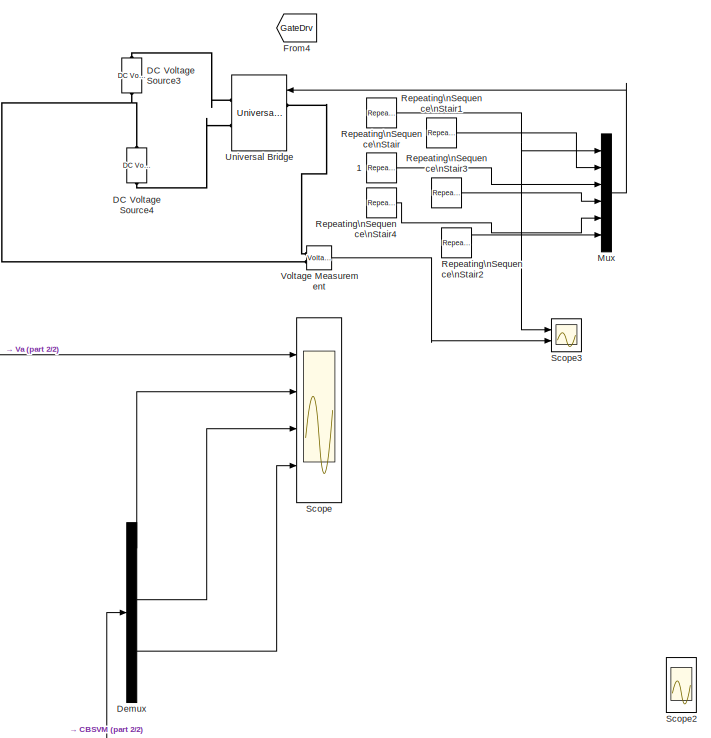
[diagram: root canvas - part 1/2, top right region]
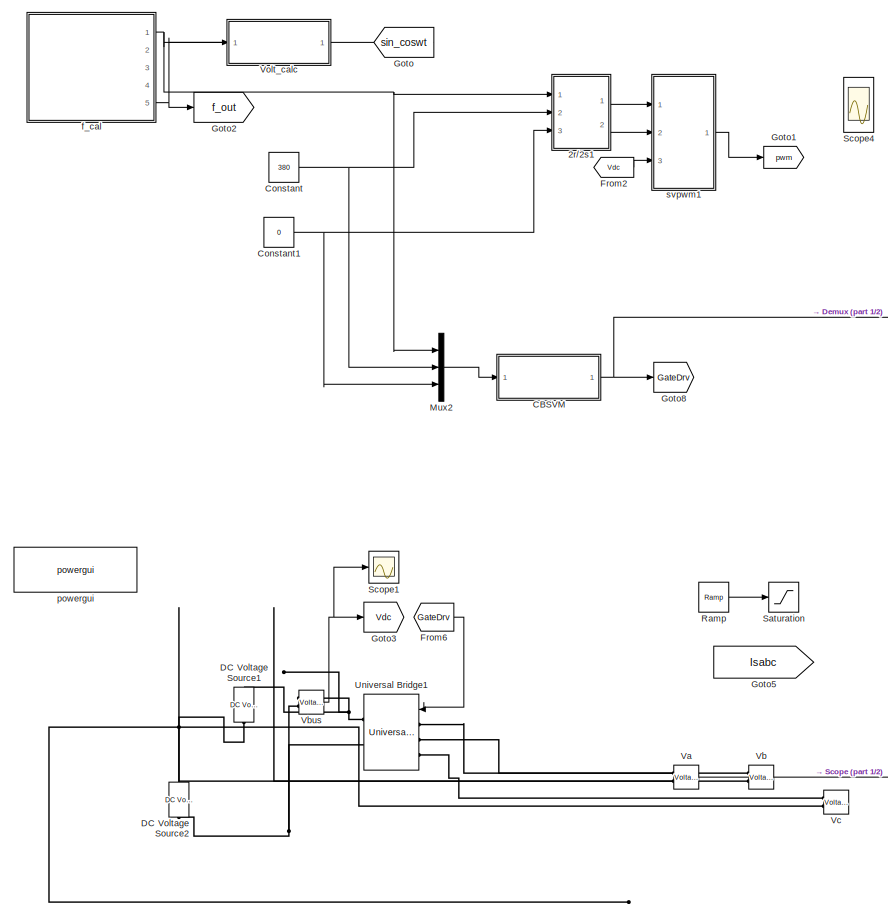
[diagram: root canvas - part 2/2, bottom left region]
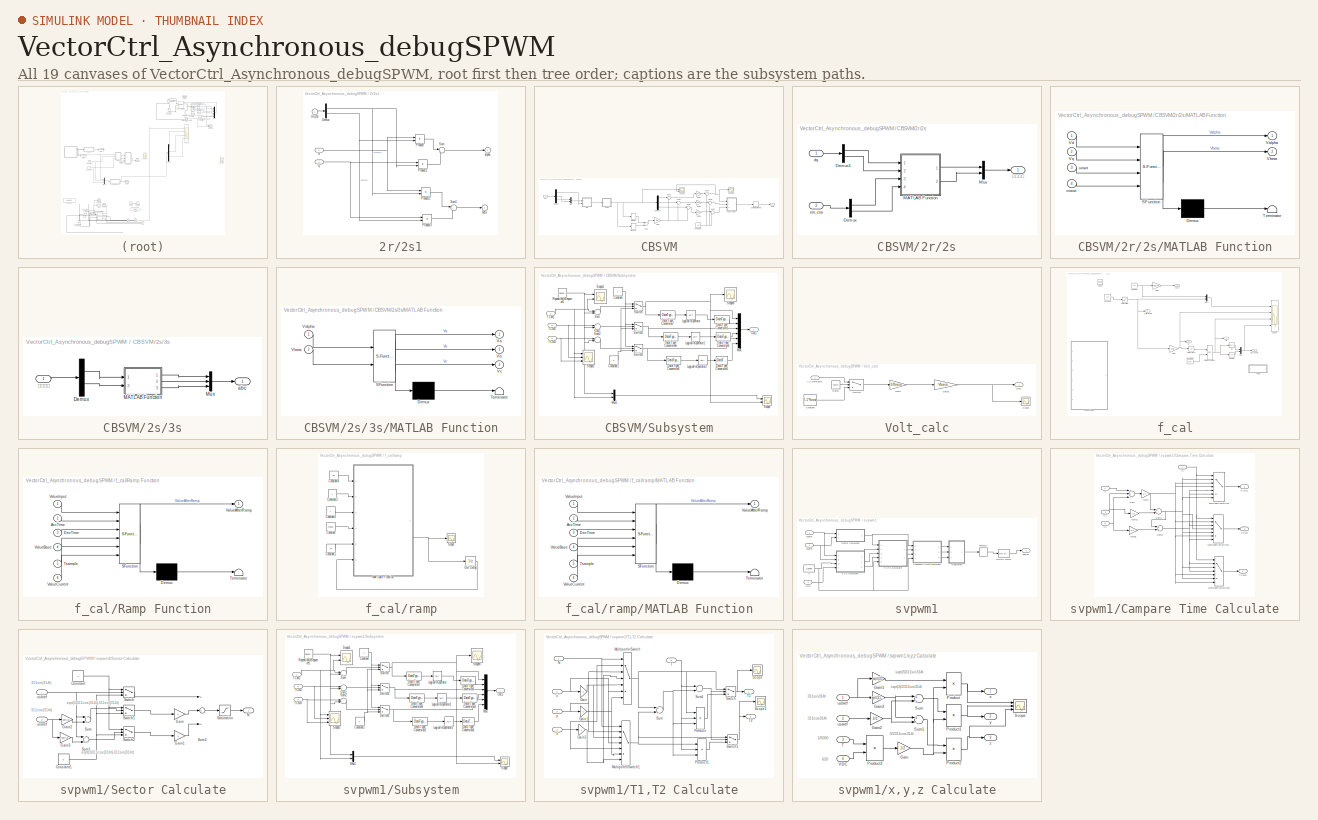
[diagram: thumbnail index - all 19 canvases of the model, root first then tree order]
MODEL VectorCtrl_Asynchronous_debugSPWM
KIND model
CONFIG InitFcn = np=2;\nfN=50;\nVN=400;\nPN=3.7e+04;\nIN=PN/(VN*1.732);\n\nRs=0.08233;\nLls=0.000724;\nRr=0.0503;\nLlr=0.000724;\nLm=0.02711;\nLs=Lm+Lls;\nLr=Lm+Llr;\nKleak=1-Lm*Lm/(Ls*Lr);\nTr=Lr/Rr;\n\nTs=20e-6;\nfbase=50;\nVbase=220*sqrt(3);\nwbase=2*pi*fbase;
BLOCK [Reference] 1  REF=simulink/Sources/Repeating\nSequence\nStair
  ConRadixGroup = Best Precision: Vector-wise
  LockScale = off
  OutDataType = fixdt(0,8)
  OutDataTypeStr = double
  OutMax = []
  OutMin = []
  OutScaling = 2^-12
  OutValues = [0 1].'
  OutputDataTypeScalingMode = double
  Ports = [0, 1]
  SID = 605
  SourceBlock = simulink/Sources/Repeating\nSequence\nStair
  SourceType = Repeating Sequence Stair
  tsamp = 200e-6
BLOCK [SubSystem] 2r//2s1
  FunctionWithSeparateData = off
  MaskHideContents = off
  MinAlgLoopOccurrences = off
  Opaque = off
  Ports = [3, 2]
  PropExecContextOutsideSubsystem = off
  RTWSystemCode = Auto
  RequestExecContextInheritance = off
  SID = 6
BLOCK [Demux] 2r//2s1/Demux
  DisplayOption = bar
  Outputs = 2
  Ports = [1, 2]
  SID = 10
BLOCK [Product] 2r//2s1/Product
  InputSameDT = off
  OutDataTypeStr = Inherit: Inherit via internal rule
  Ports = [2, 1]
  SID = 11
  SaturateOnIntegerOverflow = off
BLOCK [Product] 2r//2s1/Product1
  InputSameDT = off
  OutDataTypeStr = Inherit: Inherit via internal rule
  Ports = [2, 1]
  SID = 12
  SaturateOnIntegerOverflow = off
BLOCK [Product] 2r//2s1/Product2
  InputSameDT = off
  OutDataTypeStr = Inherit: Inherit via internal rule
  Ports = [2, 1]
  SID = 13
  SaturateOnIntegerOverflow = off
BLOCK [Product] 2r//2s1/Product3
  InputSameDT = off
  OutDataTypeStr = Inherit: Inherit via internal rule
  Ports = [2, 1]
  SID = 14
  SaturateOnIntegerOverflow = off
BLOCK [Sum] 2r//2s1/Sum
  IconShape = round
  InputSameDT = off
  Inputs = |+-
  OutDataTypeStr = Inherit: Inherit via internal rule
  Ports = [2, 1]
  SID = 15
  SaturateOnIntegerOverflow = off
BLOCK [Sum] 2r//2s1/Sum1
  IconShape = round
  InputSameDT = off
  Inputs = |++
  OutDataTypeStr = Inherit: Inherit via internal rule
  Ports = [2, 1]
  SID = 16
  SaturateOnIntegerOverflow = off
BLOCK [Outport] 2r//2s1/alpha
  IconDisplay = Port number
  InitialOutput = 0
  Port = 2
  SID = 18
BLOCK [Outport] 2r//2s1/beta
  IconDisplay = Port number
  InitialOutput = 0
  SID = 17
BLOCK [Inport] 2r//2s1/d
  IconDisplay = Port number
  Port = 2
  SID = 8
BLOCK [Inport] 2r//2s1/q
  IconDisplay = Port number
  Port = 3
  SID = 9
BLOCK [Inport] 2r//2s1/sin_cos
  IconDisplay = Port number
  PortDimensions = 2
  SID = 7
BLOCK [SubSystem] CBSVM
  FunctionWithSeparateData = off
  MaskHideContents = off
  MinAlgLoopOccurrences = off
  Opaque = off
  Ports = [1, 1]
  PropExecContextOutsideSubsystem = off
  RTWSystemCode = Auto
  RequestExecContextInheritance = off
  SID = 462
BLOCK [SubSystem] CBSVM/2r//2s
  FunctionWithSeparateData = off
  MaskHideContents = off
  MinAlgLoopOccurrences = off
  Opaque = off
  Ports = [2, 1]
  PropExecContextOutsideSubsystem = off
  RTWSystemCode = Auto
  RequestExecContextInheritance = off
  SID = 466
BLOCK [Demux] CBSVM/2r//2s/Demux
  DisplayOption = bar
  Outputs = 2
  Ports = [1, 2]
  SID = 469
BLOCK [Demux] CBSVM/2r//2s/Demux1
  DisplayOption = bar
  Outputs = 2
  Ports = [1, 2]
  SID = 470
BLOCK [SubSystem] CBSVM/2r//2s/MATLAB Function
  ErrorFcn = Stateflow.Translate.translate
  FunctionWithSeparateData = off
  MaskDescription = Embedded MATLAB block
  MaskDisplay = bgColor = Simulink.Root.ColorString2Rgb(get_param(gcbh, 'BackgroundColor')); image(imread('private/eml_membrane_16.png','png','BackgroundColor',bgColor(1:3)),'center'); disp([10 10 'fcn']);  <repeated x3 — deduplicated; at blocks: MATLAB Function, Ramp Function>
  MaskHideContents = off
  MaskIconFrame = on
  MaskIconOpaque = off
  MaskIconRotate = none
  MaskIconUnits = normalized
  MaskPortRotate = default
  MaskSelfModifiable = on
  MaskType = Stateflow
  MinAlgLoopOccurrences = off
  Opaque = off
  PermitHierarchicalResolution = ExplicitOnly
  Ports = [4, 2]
  PropExecContextOutsideSubsystem = off
  RTWSystemCode = Auto
  RequestExecContextInheritance = off
  SFBlockType = MATLAB Function
  SID = 471
  TreatAsAtomicUnit = on
BLOCK [Demux] CBSVM/2r//2s/MATLAB Function/ Demux 
  Outputs = 1
  Ports = [1, 1]
  SID = 471::20
BLOCK [S-Function] CBSVM/2r//2s/MATLAB Function/ SFunction 
  EnableBusSupport = on
  FunctionName = sf_sfun
  PortCounts = [4 3]
  Ports = [4, 3]
  SID = 471::19
  Tag = Stateflow S-Function VectorCtrl_Asynchronous_debugSPWM 16
BLOCK [Terminator] CBSVM/2r//2s/MATLAB Function/ Terminator 
  SID = 471::22
BLOCK [Outport] CBSVM/2r//2s/MATLAB Function/Valpha
  IconDisplay = Port number
  SID = 471::29
BLOCK [Outport] CBSVM/2r//2s/MATLAB Function/Vbeta
  IconDisplay = Port number
  Port = 2
  SID = 471::30
BLOCK [Inport] CBSVM/2r//2s/MATLAB Function/Vd
  IconDisplay = Port number
  SID = 471::27
BLOCK [Inport] CBSVM/2r//2s/MATLAB Function/Vq
  IconDisplay = Port number
  Port = 2
  SID = 471::28
BLOCK [Inport] CBSVM/2r//2s/MATLAB Function/coswt
  IconDisplay = Port number
  Port = 4
  SID = 471::26
BLOCK [Inport] CBSVM/2r//2s/MATLAB Function/sinwt
  IconDisplay = Port number
  Port = 3
  SID = 471::25
BLOCK [Mux] CBSVM/2r//2s/Mux
  DisplayOption = bar
  Inputs = 2
  Ports = [2, 1]
  SID = 472
BLOCK [Inport] CBSVM/2r//2s/dq
  IconDisplay = Port number
  SID = 467
BLOCK [Inport] CBSVM/2r//2s/sin_cos
  IconDisplay = Port number
  Port = 2
  SID = 468
BLOCK [Outport] CBSVM/2r//2s/αβ
  IconDisplay = Port number
  SID = 473
BLOCK [SubSystem] CBSVM/2s//3s
  FunctionWithSeparateData = off
  MaskHideContents = off
  MinAlgLoopOccurrences = off
  Opaque = off
  Ports = [1, 1]
  PropExecContextOutsideSubsystem = off
  RTWSystemCode = Auto
  RequestExecContextInheritance = off
  SID = 496
BLOCK [Demux] CBSVM/2s//3s/Demux
  DisplayOption = bar
  Outputs = 2
  Ports = [1, 2]
  SID = 498
BLOCK [SubSystem] CBSVM/2s//3s/MATLAB Function
  ErrorFcn = Stateflow.Translate.translate
  FunctionWithSeparateData = off
  MaskDescription = Embedded MATLAB block
  MaskDisplay = bgColor = Simulink.Root.ColorString2Rgb(get_param(gcbh, 'BackgroundColor')); image(imread('private/eml_membrane_16.png','png','BackgroundColor',bgColor(1:3)),'center'); disp([10 10 'Park']);
  MaskHideContents = off
  MaskIconFrame = on
  MaskIconOpaque = off
  MaskIconRotate = none
  MaskIconUnits = normalized
  MaskPortRotate = default
  MaskSelfModifiable = on
  MaskType = Stateflow
  MinAlgLoopOccurrences = off
  Opaque = off
  PermitHierarchicalResolution = ExplicitOnly
  Ports = [2, 3]
  PropExecContextOutsideSubsystem = off
  RTWSystemCode = Auto
  RequestExecContextInheritance = off
  SFBlockType = MATLAB Function
  SID = 499
  TreatAsAtomicUnit = on
BLOCK [Demux] CBSVM/2s//3s/MATLAB Function/ Demux 
  Outputs = 1
  Ports = [1, 1]
  SID = 499::20
BLOCK [S-Function] CBSVM/2s//3s/MATLAB Function/ SFunction 
  EnableBusSupport = on
  FunctionName = sf_sfun
  PortCounts = [2 4]
  Ports = [2, 4]
  SID = 499::19
  Tag = Stateflow S-Function VectorCtrl_Asynchronous_debugSPWM 19
BLOCK [Terminator] CBSVM/2s//3s/MATLAB Function/ Terminator 
  SID = 499::22
BLOCK [Outport] CBSVM/2s//3s/MATLAB Function/Va
  IconDisplay = Port number
  SID = 499::28
BLOCK [Inport] CBSVM/2s//3s/MATLAB Function/Valpha
  IconDisplay = Port number
  SID = 499::26
BLOCK [Outport] CBSVM/2s//3s/MATLAB Function/Vb
  IconDisplay = Port number
  Port = 2
  SID = 499::29
BLOCK [Inport] CBSVM/2s//3s/MATLAB Function/Vbeta
  IconDisplay = Port number
  Port = 2
  SID = 499::27
BLOCK [Outport] CBSVM/2s//3s/MATLAB Function/Vc
  IconDisplay = Port number
  Port = 3
  SID = 499::30
BLOCK [Mux] CBSVM/2s//3s/Mux
  DisplayOption = bar
  Inputs = 3
  Ports = [3, 1]
  SID = 500
BLOCK [Outport] CBSVM/2s//3s/abc
  IconDisplay = Port number
  SID = 501
BLOCK [Inport] CBSVM/2s//3s/αβ
  IconDisplay = Port number
  SID = 497
BLOCK [Constant] CBSVM/Constant
  SID = 557
  Value = 0.5
BLOCK [Demux] CBSVM/Demux
  DisplayOption = bar
  Outputs = 3
  Ports = [1, 3]
  SID = 502
BLOCK [Demux] CBSVM/Demux1
  DisplayOption = bar
  Outputs = 3
  Ports = [1, 3]
  SID = 504
BLOCK [Gain] CBSVM/Gain
  Gain = -0.5
  OutDataTypeStr = Inherit: Inherit via internal rule
  ParamDataTypeStr = Inherit: Inherit via internal rule
  SID = 507
  SaturateOnIntegerOverflow = off
BLOCK [Gain] CBSVM/Gain1
  Gain = 1/600
  OutDataTypeStr = Inherit: Inherit via internal rule
  ParamDataTypeStr = Inherit: Inherit via internal rule
  SID = 541
  SaturateOnIntegerOverflow = off
BLOCK [Gain] CBSVM/Gain2
  Gain = 1/600
  OutDataTypeStr = Inherit: Inherit via internal rule
  ParamDataTypeStr = Inherit: Inherit via internal rule
  SID = 542
  SaturateOnIntegerOverflow = off
BLOCK [Gain] CBSVM/Gain3
  Gain = 1/600
  OutDataTypeStr = Inherit: Inherit via internal rule
  ParamDataTypeStr = Inherit: Inherit via internal rule
  SID = 543
  SaturateOnIntegerOverflow = off
BLOCK [Inport] CBSVM/In1
  IconDisplay = Port number
  SID = 463
BLOCK [MinMax] CBSVM/MinMax
  InputSameDT = off
  Ports = [1, 1]
  SID = 505
  SaturateOnIntegerOverflow = off
BLOCK [MinMax] CBSVM/MinMax1
  Function = max
  InputSameDT = off
  Ports = [1, 1]
  SID = 506
  SaturateOnIntegerOverflow = off
BLOCK [Mux] CBSVM/Mux
  DisplayOption = bar
  Inputs = 2
  Ports = [2, 1]
  SID = 503
BLOCK [Outport] CBSVM/Out1
  IconDisplay = Port number
  SID = 464
BLOCK [Scope] CBSVM/Scope
  DataFormat = StructureWithTime
  Floating = off
  LimitDataPoints = off
  NumInputPorts = 2
  Ports = [2]
  SID = 512
  SampleTime = 0
  SaveName = ScopeData12
  SaveToWorkspace = on
  ShowLegends = off
  YMax = 5~5
  YMin = -5~-5
  ZoomMode = xonly
BLOCK [Scope] CBSVM/Scope1
  DataFormat = StructureWithTime
  Floating = off
  LimitDataPoints = off
  NumInputPorts = 1
  Ports = [1]
  SID = 547
  SampleTime = 0
  SaveName = ScopeData14
  ShowLegends = off
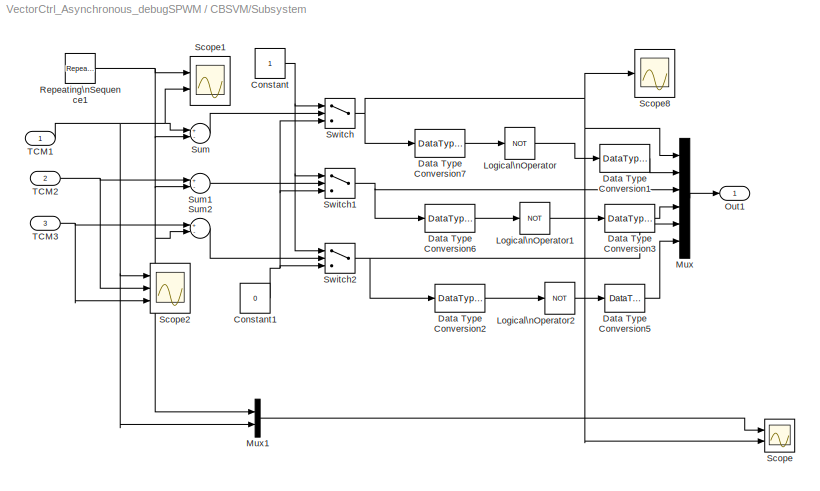
BLOCK [SubSystem] CBSVM/Subsystem
  FunctionWithSeparateData = off
  MaskHideContents = off
  MinAlgLoopOccurrences = off
  Opaque = off
  Ports = [3, 1]
  PropExecContextOutsideSubsystem = off
  RTWSystemCode = Auto
  RequestExecContextInheritance = off
  SID = 513
BLOCK [Constant] CBSVM/Subsystem/Constant
  SID = 517
BLOCK [Constant] CBSVM/Subsystem/Constant1
  SID = 518
  Value = 0
BLOCK [DataTypeConversion] CBSVM/Subsystem/Data Type Conversion1
  OutDataTypeStr = double
  SID = 519
BLOCK [DataTypeConversion] CBSVM/Subsystem/Data Type Conversion2
  OutDataTypeStr = boolean
  SID = 520
BLOCK [DataTypeConversion] CBSVM/Subsystem/Data Type Conversion3
  OutDataTypeStr = double
  SID = 521
BLOCK [DataTypeConversion] CBSVM/Subsystem/Data Type Conversion5
  OutDataTypeStr = double
  SID = 522
BLOCK [DataTypeConversion] CBSVM/Subsystem/Data Type Conversion6
  OutDataTypeStr = boolean
  SID = 523
BLOCK [DataTypeConversion] CBSVM/Subsystem/Data Type Conversion7
  OutDataTypeStr = boolean
  SID = 524
BLOCK [Logic] CBSVM/Subsystem/Logical\nOperator
  AllPortsSameDT = off
  Operator = NOT
  Ports = [1, 1]
  SID = 525
BLOCK [Logic] CBSVM/Subsystem/Logical\nOperator1
  AllPortsSameDT = off
  Operator = NOT
  Ports = [1, 1]
  SID = 526
BLOCK [Logic] CBSVM/Subsystem/Logical\nOperator2
  AllPortsSameDT = off
  Operator = NOT
  Ports = [1, 1]
  SID = 527
BLOCK [Mux] CBSVM/Subsystem/Mux
  DisplayOption = bar
  Inputs = 6
  Ports = [6, 1]
  SID = 528
BLOCK [Mux] CBSVM/Subsystem/Mux1
  DisplayOption = bar
  Inputs = 2
  Ports = [2, 1]
  SID = 551
BLOCK [Outport] CBSVM/Subsystem/Out1
  IconDisplay = Port number
  SID = 539
BLOCK [Reference] CBSVM/Subsystem/Repeating\nSequence1  REF=simulink/Sources/Repeating\nSequence
  Ports = [0, 1]
  SID = 529
  SourceBlock = simulink/Sources/Repeating\nSequence
  SourceType = Repeating table
  rep_seq_t = [0 1/10000 1/5000]
  rep_seq_y = [0 1 0]
BLOCK [Scope] CBSVM/Subsystem/Scope
  DataFormat = StructureWithTime
  Floating = off
  LimitDataPoints = off
  NumInputPorts = 2
  Ports = [2]
  SID = 550
  SampleTime = 0
  SaveName = ScopeData21
  ShowLegends = off
  YMax = 5~5
  YMin = -5~-5
  ZoomMode = xonly
BLOCK [Scope] CBSVM/Subsystem/Scope1
  DataFormat = StructureWithTime
  Floating = off
  LimitDataPoints = off
  NumInputPorts = 2
  Ports = [2]
  SID = 530
  SaveName = ScopeData15
  ShowLegends = off
  TimeRange = 0.028
  YMax = 1.2~2.64e-005
  YMin = 0~2.45e-005
  ZoomMode = xonly
BLOCK [Scope] CBSVM/Subsystem/Scope2
  DataFormat = StructureWithTime
  Floating = off
  LimitDataPoints = off
  NumInputPorts = 3
  Ports = [3]
  SID = 531
  SaveName = ScopeData19
  ShowLegends = off
  TimeRange = 1
  YMax = 6e-005~6e-005~6e-05
  YMin = 2.25e-005~2.25e-005~2.25e-05
  ZoomMode = xonly
BLOCK [Scope] CBSVM/Subsystem/Scope8
  DataFormat = StructureWithTime
  Floating = off
  LimitDataPoints = off
  NumInputPorts = 1
  Ports = [1]
  SID = 532
  SaveName = ScopeData13
  SaveToWorkspace = on
  ShowLegends = off
  TimeRange = 0.07000000000000001
  YMax = 2
  YMin = 0
  ZoomMode = xonly
BLOCK [Sum] CBSVM/Subsystem/Sum
  InputSameDT = off
  Inputs = +-
  OutDataTypeStr = Inherit: Inherit via internal rule
  Ports = [2, 1]
  SID = 533
BLOCK [Sum] CBSVM/Subsystem/Sum1
  InputSameDT = off
  Inputs = +-
  OutDataTypeStr = Inherit: Inherit via internal rule
  Ports = [2, 1]
  SID = 534
BLOCK [Sum] CBSVM/Subsystem/Sum2
  InputSameDT = off
  Inputs = +-
  OutDataTypeStr = Inherit: Inherit via internal rule
  Ports = [2, 1]
  SID = 535
BLOCK [Switch] CBSVM/Subsystem/Switch
  InputSameDT = off
  SID = 536
BLOCK [Switch] CBSVM/Subsystem/Switch1
  InputSameDT = off
  SID = 537
BLOCK [Switch] CBSVM/Subsystem/Switch2
  InputSameDT = off
  SID = 538
BLOCK [Inport] CBSVM/Subsystem/TCM1
  IconDisplay = Port number
  SID = 514
BLOCK [Inport] CBSVM/Subsystem/TCM2
  IconDisplay = Port number
  Port = 2
  SID = 515
BLOCK [Inport] CBSVM/Subsystem/TCM3
  IconDisplay = Port number
  Port = 3
  SID = 516
BLOCK [Sum] CBSVM/Sum
  InputSameDT = off
  Inputs = |++
  OutDataTypeStr = Inherit: Inherit via internal rule
  Ports = [2, 1]
  SID = 508
  SaturateOnIntegerOverflow = off
BLOCK [Sum] CBSVM/Sum1
  IconShape = round
  InputSameDT = off
  Inputs = |++
  OutDataTypeStr = Inherit: Inherit via internal rule
  Ports = [2, 1]
  SID = 509
  SaturateOnIntegerOverflow = off
BLOCK [Sum] CBSVM/Sum2
  IconShape = round
  InputSameDT = off
  Inputs = |++
  OutDataTypeStr = Inherit: Inherit via internal rule
  Ports = [2, 1]
  SID = 510
  SaturateOnIntegerOverflow = off
BLOCK [Sum] CBSVM/Sum3
  IconShape = round
  InputSameDT = off
  Inputs = |++
  OutDataTypeStr = Inherit: Inherit via internal rule
  Ports = [2, 1]
  SID = 511
  SaturateOnIntegerOverflow = off
BLOCK [Sum] CBSVM/Sum4
  IconShape = round
  InputSameDT = off
  Inputs = |++
  OutDataTypeStr = Inherit: Inherit via internal rule
  Ports = [2, 1]
  SID = 554
  SaturateOnIntegerOverflow = off
BLOCK [Sum] CBSVM/Sum5
  IconShape = round
  InputSameDT = off
  Inputs = |++
  OutDataTypeStr = Inherit: Inherit via internal rule
  Ports = [2, 1]
  SID = 555
  SaturateOnIntegerOverflow = off
BLOCK [Sum] CBSVM/Sum6
  IconShape = round
  InputSameDT = off
  Inputs = |++
  OutDataTypeStr = Inherit: Inherit via internal rule
  Ports = [2, 1]
  SID = 556
  SaturateOnIntegerOverflow = off
BLOCK [ZeroOrderHold] CBSVM/Zero-Order\nHold
  SID = 609
  SampleTime = Ts
BLOCK [Constant] Constant
  SID = 348
  Value = 380
BLOCK [Constant] Constant1
  SID = 211
  Value = 0
BLOCK [Reference] DC Voltage Source1  REF=powerlib/Electrical\nSources/DC Voltage Source
  Amplitude = 300
  Measurements = None
  Ports = [0, 0, 0, 0, 0, 1, 1]
  SID = 213
  SourceBlock = powerlib/Electrical\nSources/DC Voltage Source
  SourceType = DC Voltage Source
BLOCK [Reference] DC Voltage Source2  REF=powerlib/Electrical\nSources/DC Voltage Source
  Amplitude = 300
  Measurements = None
  Ports = [0, 0, 0, 0, 0, 1, 1]
  SID = 576
  SourceBlock = powerlib/Electrical\nSources/DC Voltage Source
  SourceType = DC Voltage Source
BLOCK [Reference] DC Voltage Source3  REF=powerlib/Electrical\nSources/DC Voltage Source
  Amplitude = 300
  Measurements = None
  Ports = [0, 0, 0, 0, 0, 1, 1]
  SID = 584
  SourceBlock = powerlib/Electrical\nSources/DC Voltage Source
  SourceType = DC Voltage Source
BLOCK [Reference] DC Voltage Source4  REF=powerlib/Electrical\nSources/DC Voltage Source
  Amplitude = 300
  Measurements = None
  Ports = [0, 0, 0, 0, 0, 1, 1]
  SID = 585
  SourceBlock = powerlib/Electrical\nSources/DC Voltage Source
  SourceType = DC Voltage Source
BLOCK [Demux] Demux
  DisplayOption = bar
  Outputs = 6
  Ports = [1, 6]
  SID = 580
BLOCK [From] From2
  GotoTag = Vdc
  SID = 19
BLOCK [From] From4
  GotoTag = GateDrv
  SID = 602
BLOCK [From] From6
  GotoTag = GateDrv
  SID = 571
BLOCK [Goto] Goto
  GotoTag = sin_coswt
  SID = 203
BLOCK [Goto] Goto1
  GotoTag = pwm
  SID = 20
  TagVisibility = global
BLOCK [Goto] Goto2
  GotoTag = f_out
  SID = 204
BLOCK [Goto] Goto3
  GotoTag = Vdc
  SID = 219
BLOCK [Goto] Goto5
  GotoTag = Isabc
  SID = 221
BLOCK [Goto] Goto8
  GotoTag = GateDrv
  SID = 570
BLOCK [Mux] Mux
  DisplayOption = bar
  Inputs = 6
  Ports = [6, 1]
  SID = 589
BLOCK [Mux] Mux2
  DisplayOption = bar
  Inputs = 3
  Ports = [3, 1]
  SID = 465
BLOCK [Reference] Ramp  REF=simulink/Sources/Ramp
  Ports = [0, 1]
  SID = 247
  SourceBlock = simulink/Sources/Ramp
  SourceType = Ramp
  VectorParams1D = on
  X0 = 0
  slope = 4
  start = 0
BLOCK [Reference] Repeating\nSequence\nStair  REF=simulink/Sources/Repeating\nSequence\nStair
  ConRadixGroup = Best Precision: Vector-wise
  LockScale = off
  OutDataType = fixdt(0,8)
  OutDataTypeStr = double
  OutMax = []
  OutMin = []
  OutScaling = 2^-12
  OutValues = [0 1].'
  OutputDataTypeScalingMode = double
  Ports = [0, 1]
  SID = 603
  SourceBlock = simulink/Sources/Repeating\nSequence\nStair
  SourceType = Repeating Sequence Stair
  tsamp = 200e-6
BLOCK [Reference] Repeating\nSequence\nStair1  REF=simulink/Sources/Repeating\nSequence\nStair
  ConRadixGroup = Best Precision: Vector-wise
  LockScale = off
  OutDataType = fixdt(0,8)
  OutDataTypeStr = double
  OutMax = []
  OutMin = []
  OutScaling = 2^-12
  OutValues = [1 0].'
  OutputDataTypeScalingMode = double
  Ports = [0, 1]
  SID = 604
  SourceBlock = simulink/Sources/Repeating\nSequence\nStair
  SourceType = Repeating Sequence Stair
  tsamp = 200e-6
BLOCK [Reference] Repeating\nSequence\nStair2  REF=simulink/Sources/Repeating\nSequence\nStair
  ConRadixGroup = Best Precision: Vector-wise
  LockScale = off
  OutDataType = fixdt(0,8)
  OutDataTypeStr = double
  OutMax = []
  OutMin = []
  OutScaling = 2^-12
  OutValues = [1 0].'
  OutputDataTypeScalingMode = double
  Ports = [0, 1]
  SID = 608
  SourceBlock = simulink/Sources/Repeating\nSequence\nStair
  SourceType = Repeating Sequence Stair
  tsamp = 200e-6
BLOCK [Reference] Repeating\nSequence\nStair3  REF=simulink/Sources/Repeating\nSequence\nStair
  ConRadixGroup = Best Precision: Vector-wise
  LockScale = off
  OutDataType = fixdt(0,8)
  OutDataTypeStr = double
  OutMax = []
  OutMin = []
  OutScaling = 2^-12
  OutValues = [1 0].'
  OutputDataTypeScalingMode = double
  Ports = [0, 1]
  SID = 606
  SourceBlock = simulink/Sources/Repeating\nSequence\nStair
  SourceType = Repeating Sequence Stair
  tsamp = 200e-6
BLOCK [Reference] Repeating\nSequence\nStair4  REF=simulink/Sources/Repeating\nSequence\nStair
  ConRadixGroup = Best Precision: Vector-wise
  LockScale = off
  OutDataType = fixdt(0,8)
  OutDataTypeStr = double
  OutMax = []
  OutMin = []
  OutScaling = 2^-12
  OutValues = [0 1].'
  OutputDataTypeScalingMode = double
  Ports = [0, 1]
  SID = 607
  SourceBlock = simulink/Sources/Repeating\nSequence\nStair
  SourceType = Repeating Sequence Stair
  tsamp = 200e-6
BLOCK [Saturate] Saturation
  InputPortMap = u0
  LowerLimit = 0
  Ports = [1, 1]
  SID = 248
  UpperLimit = 20
BLOCK [Scope] Scope
  DataFormat = StructureWithTime
  Floating = off
  LimitDataPoints = off
  NumInputPorts = 4
  Ports = [4]
  SID = 581
  SampleTime = 0
  SaveName = ScopeData2
  SaveToWorkspace = on
  ShowLegends = off
  YMax = 400~2~5~5
  YMin = -400~0~-5~-5
  ZoomMode = xonly
BLOCK [Scope] Scope1
  DataFormat = StructureWithTime
  Floating = off
  LimitDataPoints = off
  NumInputPorts = 1
  Ports = [1]
  SID = 227
  SampleTime = 0
  SaveName = ScopeData3
  ShowLegends = off
BLOCK [Scope] Scope2
  DataFormat = StructureWithTime
  Floating = off
  LimitDataPoints = off
  NumInputPorts = 2
  Ports = [2]
  SID = 230
  SampleTime = 0
  SaveName = ScopeData4
  SaveToWorkspace = on
  ShowLegends = off
  YMax = 5~5
  YMin = -5~-5
  ZoomMode = xonly
BLOCK [Scope] Scope3
  DataFormat = StructureWithTime
  Floating = off
  LimitDataPoints = off
  NumInputPorts = 2
  Ports = [2]
  SID = 595
  SampleTime = 0
  SaveName = ScopeData5
  ShowLegends = off
  YMax = 5~400
  YMin = -5~-400
  ZoomMode = xonly
BLOCK [Scope] Scope4
  DataFormat = StructureWithTime
  Floating = off
  LimitDataPoints = off
  NumInputPorts = 2
  Ports = [2]
  SID = 561
  SampleTime = 0
  SaveName = ScopeData22
  SaveToWorkspace = on
  ShowLegends = off
  YMax = 5~5
  YMin = -5~-5
  ZoomMode = xonly
BLOCK [Reference] Universal Bridge  REF=powerlib/Power\nElectronics/Universal Bridge
  Arms = 3
  Device = IGBT / Diodes
  ForwardVoltage = 0
  ForwardVoltages = [  0  0  ]
  GTOparameters = [ 10e-6 , 20e-6 ]
  IGBTparameters = [ 0 , 0 ]
  Lon = 0
  Measurements = None
  Measurements_2 = None
  Ports = [1, 0, 0, 0, 0, 3, 2]
  Ron = 1e-3
  SID = 583
  SnubberCapacitance = inf
  SnubberResistance = 1e5
  SourceBlock = powerlib/Power\nElectronics/Universal Bridge
  SourceType = Universal Bridge
  converterType = Rectifier
BLOCK [Reference] Universal Bridge1  REF=powerlib/Power\nElectronics/Universal Bridge
  Arms = 3
  Device = IGBT / Diodes
  ForwardVoltage = 0
  ForwardVoltages = [  0  0  ]
  GTOparameters = [ 10e-6 , 20e-6 ]
  IGBTparameters = [ 1e-6 , 2e-6 ]
  Lon = 0
  Measurements = None
  Measurements_2 = None
  Ports = [1, 0, 0, 0, 0, 3, 2]
  Ron = 1e-3
  SID = 610
  SnubberCapacitance = inf
  SnubberResistance = 1e5
  SourceBlock = powerlib/Power\nElectronics/Universal Bridge
  SourceType = Universal Bridge
  converterType = Rectifier
BLOCK [Reference] Va  REF=powerlib/Measurements/Voltage Measurement
  OutputType = Complex
  PSBequivalent = 0
  PhasorSimulation = off
  Ports = [0, 1, 0, 0, 0, 2]
  SID = 577
  SourceBlock = powerlib/Measurements/Voltage Measurement
  SourceType = Voltage Measurement
BLOCK [Reference] Vb  REF=powerlib/Measurements/Voltage Measurement
  OutputType = Complex
  PSBequivalent = 0
  PhasorSimulation = off
  Ports = [0, 1, 0, 0, 0, 2]
  SID = 578
  SourceBlock = powerlib/Measurements/Voltage Measurement
  SourceType = Voltage Measurement
BLOCK [Reference] Vbus  REF=powerlib/Measurements/Voltage Measurement
  OutputType = Complex
  PSBequivalent = 0
  PhasorSimulation = off
  Ports = [0, 1, 0, 0, 0, 2]
  SID = 218
  SourceBlock = powerlib/Measurements/Voltage Measurement
  SourceType = Voltage Measurement
BLOCK [Reference] Vc  REF=powerlib/Measurements/Voltage Measurement
  OutputType = Complex
  PSBequivalent = 0
  PhasorSimulation = off
  Ports = [0, 1, 0, 0, 0, 2]
  SID = 579
  SourceBlock = powerlib/Measurements/Voltage Measurement
  SourceType = Voltage Measurement
BLOCK [SubSystem] Volt_calc
  FunctionWithSeparateData = off
  MaskHideContents = off
  MinAlgLoopOccurrences = off
  Opaque = off
  Ports = [1, 1]
  PropExecContextOutsideSubsystem = off
  RTWSystemCode = Auto
  RequestExecContextInheritance = off
  SID = 205
BLOCK [Constant] Volt_calc/Constant
  SID = 241
  Value = 0.1*fbase
BLOCK [Gain] Volt_calc/Gain
  Gain = 1/fbase
  OutDataTypeStr = Inherit: Inherit via internal rule
  ParamDataTypeStr = Inherit: Inherit via internal rule
  SID = 209
  SaturateOnIntegerOverflow = off
BLOCK [Gain] Volt_calc/Gain1
  Gain = Vbase
  OutDataTypeStr = Inherit: Inherit via internal rule
  ParamDataTypeStr = Inherit: Inherit via internal rule
  SID = 210
  SaturateOnIntegerOverflow = off
BLOCK [Outport] Volt_calc/Out1
  IconDisplay = Port number
  SID = 207
BLOCK [Reference] Volt_calc/Ramp  REF=simulink/Sources/Ramp
  Ports = [0, 1]
  SID = 239
  SourceBlock = simulink/Sources/Ramp
  SourceType = Ramp
  VectorParams1D = on
  X0 = 0
  slope = 1
  start = 0
BLOCK [Scope] Volt_calc/Scope
  DataFormat = StructureWithTime
  Floating = off
  LimitDataPoints = off
  NumInputPorts = 1
  Ports = [1]
  SID = 242
  SampleTime = 0
  SaveName = ScopeData6
  ShowLegends = off
BLOCK [Switch] Volt_calc/Switch
  InputSameDT = off
  SID = 240
  SaturateOnIntegerOverflow = off
BLOCK [Inport] Volt_calc/f_AfterRamp
  IconDisplay = Port number
  SID = 206
BLOCK [Reference] Voltage Measurement  REF=powerlib/Measurements/Voltage Measurement
  OutputType = Complex
  PSBequivalent = 0
  PhasorSimulation = off
  Ports = [0, 1, 0, 0, 0, 2]
  SID = 594
  SourceBlock = powerlib/Measurements/Voltage Measurement
  SourceType = Voltage Measurement
BLOCK [SubSystem] f_cal
  FunctionWithSeparateData = off
  MaskHideContents = off
  MinAlgLoopOccurrences = off
  Opaque = off
  Ports = [0, 5]
  PropExecContextOutsideSubsystem = off
  RTWSystemCode = Auto
  RequestExecContextInheritance = off
  SID = 140
BLOCK [Constant] f_cal/Constant
  SID = 229
  Value = 50
BLOCK [Constant] f_cal/Constant1
  SID = 420
  Value = 50
BLOCK [Constant] f_cal/Constant4
  SID = 193
  Value = 2*pi
BLOCK [Gain] f_cal/Gain
  Gain = 2*pi
  OutDataTypeStr = Inherit: Inherit via internal rule
  ParamDataTypeStr = Inherit: Inherit via internal rule
  SID = 143
  SaturateOnIntegerOverflow = off
BLOCK [Gain] f_cal/Gain1
  Gain = 60/np
  OutDataTypeStr = Inherit: Inherit via internal rule
  ParamDataTypeStr = Inherit: Inherit via internal rule
  SID = 150
  SaturateOnIntegerOverflow = off
BLOCK [Integrator] f_cal/Integrator2
  Ports = [1, 1]
  SID = 194
BLOCK [Math] f_cal/Math\nFunction1
  Operator = mod
  Ports = [2, 1]
  SID = 195
BLOCK [Mux] f_cal/Mux
  DisplayOption = bar
  Inputs = 2
  Ports = [2, 1]
  SID = 151
BLOCK [Mux] f_cal/Mux1
  DisplayOption = bar
  Inputs = 2
  Ports = [2, 1]
  SID = 191
BLOCK [Reference] f_cal/Ramp  REF=simulink/Sources/Ramp
  Ports = [0, 1]
  SID = 236
  SourceBlock = simulink/Sources/Ramp
  SourceType = Ramp
  VectorParams1D = on
  X0 = 0
  slope = 10
  start = 0
BLOCK [SubSystem] f_cal/Ramp Function
  ErrorFcn = Stateflow.Translate.translate
  FunctionWithSeparateData = off
  MaskDescription = Embedded MATLAB block
  MaskHideContents = off
  MaskIconFrame = on
  MaskIconOpaque = off
  MaskIconRotate = none
  MaskIconUnits = normalized
  MaskPortRotate = default
  MaskSelfModifiable = on
  MaskType = Stateflow
  MinAlgLoopOccurrences = off
  Opaque = off
  PermitHierarchicalResolution = ExplicitOnly
  Ports = [6, 1]
  PropExecContextOutsideSubsystem = off
  RTWSystemCode = Auto
  RequestExecContextInheritance = off
  SFBlockType = MATLAB Function
  SID = 187
  TreatAsAtomicUnit = on
BLOCK [Demux] f_cal/Ramp Function/ Demux 
  Outputs = 1
  Ports = [1, 1]
  SID = 187::20
BLOCK [S-Function] f_cal/Ramp Function/ SFunction 
  EnableBusSupport = on
  FunctionName = sf_sfun
  PortCounts = [6 2]
  Ports = [6, 2]
  SID = 187::19
  Tag = Stateflow S-Function VectorCtrl_Asynchronous_debugSPWM 1
BLOCK [Terminator] f_cal/Ramp Function/ Terminator 
  SID = 187::22
BLOCK [Inport] f_cal/Ramp Function/AccTime
  IconDisplay = Port number
  Port = 2
  SID = 187::23
BLOCK [Inport] f_cal/Ramp Function/DecTime
  IconDisplay = Port number
  Port = 3
  SID = 187::24
BLOCK [Inport] f_cal/Ramp Function/Tsample
  IconDisplay = Port number
  Port = 5
  SID = 187::26
BLOCK [Outport] f_cal/Ramp Function/ValueAfterRamp
  IconDisplay = Port number
  SID = 187::5
BLOCK [Inport] f_cal/Ramp Function/ValueBase
  IconDisplay = Port number
  Port = 4
  SID = 187::25
BLOCK [Inport] f_cal/Ramp Function/ValueCurrent
  IconDisplay = Port number
  Port = 6
  SID = 187::29
BLOCK [Inport] f_cal/Ramp Function/ValueInput
  IconDisplay = Port number
  SID = 187::1
BLOCK [Saturate] f_cal/Saturation
  InputPortMap = u0
  LowerLimit = 0
  Ports = [1, 1]
  SID = 238
  UpperLimit = 50
BLOCK [Scope] f_cal/Scope
  DataFormat = StructureWithTime
  Floating = off
  LimitDataPoints = off
  NumInputPorts = 4
  Ports = [4]
  SID = 188
  SampleTime = 0
  SaveName = ScopeData1
  ShowLegends = off
  YMax = 5~5~5~5
  YMin = -5~-5~-5~-5
  ZoomMode = xonly
BLOCK [Trigonometry] f_cal/cosine
  Operator = cos
  Ports = [1, 1]
  SID = 147
BLOCK [Outport] f_cal/f_AfterRamp
  IconDisplay = Port number
  Port = 5
  SID = 202
BLOCK [Outport] f_cal/nset
  IconDisplay = Port number
  Port = 2
  SID = 149
BLOCK [SubSystem] f_cal/ramp
  FunctionWithSeparateData = off
  MaskHideContents = off
  MinAlgLoopOccurrences = off
  Opaque = off
  Ports = []
  PropExecContextOutsideSubsystem = off
  RTWSystemCode = Auto
  RequestExecContextInheritance = off
  SID = 153
BLOCK [Constant] f_cal/ramp/Constant
  SID = 171
  Value = fbase
BLOCK [Constant] f_cal/ramp/Constant1
  SID = 172
  Value = Ts
BLOCK [Constant] f_cal/ramp/Constant2
  SID = 173
BLOCK [Constant] f_cal/ramp/Constant3
  SID = 174
BLOCK [Constant] f_cal/ramp/Constant4
  SID = 175
  Value = 50
BLOCK [SubSystem] f_cal/ramp/MATLAB Function
  ErrorFcn = Stateflow.Translate.translate
  FunctionWithSeparateData = off
  MaskDescription = Embedded MATLAB block
  MaskHideContents = off
  MaskIconFrame = on
  MaskIconOpaque = off
  MaskIconRotate = none
  MaskIconUnits = normalized
  MaskPortRotate = default
  MaskSelfModifiable = on
  MaskType = Stateflow
  MinAlgLoopOccurrences = off
  Opaque = off
  PermitHierarchicalResolution = ExplicitOnly
  Ports = [6, 1]
  PropExecContextOutsideSubsystem = off
  RTWSystemCode = Auto
  RequestExecContextInheritance = off
  SFBlockType = MATLAB Function
  SID = 170
  TreatAsAtomicUnit = on
BLOCK [Demux] f_cal/ramp/MATLAB Function/ Demux 
  Outputs = 1
  Ports = [1, 1]
  SID = 170::20
BLOCK [S-Function] f_cal/ramp/MATLAB Function/ SFunction 
  EnableBusSupport = on
  FunctionName = sf_sfun
  PortCounts = [6 2]
  Ports = [6, 2]
  SID = 170::19
  Tag = Stateflow S-Function VectorCtrl_Asynchronous_debugSPWM 2
BLOCK [Terminator] f_cal/ramp/MATLAB Function/ Terminator 
  SID = 170::22
BLOCK [Inport] f_cal/ramp/MATLAB Function/AccTime
  IconDisplay = Port number
  Port = 2
  SID = 170::23
BLOCK [Inport] f_cal/ramp/MATLAB Function/DecTime
  IconDisplay = Port number
  Port = 3
  SID = 170::24
BLOCK [Inport] f_cal/ramp/MATLAB Function/Tsample
  IconDisplay = Port number
  Port = 5
  SID = 170::26
BLOCK [Outport] f_cal/ramp/MATLAB Function/ValueAfterRamp
  IconDisplay = Port number
  SID = 170::5
BLOCK [Inport] f_cal/ramp/MATLAB Function/ValueBase
  IconDisplay = Port number
  Port = 4
  SID = 170::25
BLOCK [Inport] f_cal/ramp/MATLAB Function/ValueCurrent
  IconDisplay = Port number
  Port = 6
  SID = 170::29
BLOCK [Inport] f_cal/ramp/MATLAB Function/ValueInput
  IconDisplay = Port number
  SID = 170::1
BLOCK [Scope] f_cal/ramp/Scope
  DataFormat = StructureWithTime
  Floating = off
  LimitDataPoints = off
  NumInputPorts = 1
  Ports = [1]
  SID = 176
  SampleTime = 0
  ShowLegends = off
BLOCK [UnitDelay] f_cal/ramp/Unit Delay
  InputProcessing = Elements as channels (sample based)
  SID = 179
  SampleTime = -1
BLOCK [Trigonometry] f_cal/sin
  Ports = [1, 1]
  SID = 146
BLOCK [Outport] f_cal/sin_coswt
  IconDisplay = Port number
  SID = 142
BLOCK [Outport] f_cal/w
  IconDisplay = Port number
  Port = 3
  SID = 196
BLOCK [Outport] f_cal/wt
  IconDisplay = Port number
  Port = 4
  SID = 197
BLOCK [Reference] powergui  REF=powerlib/powergui
  DisableRonSwitches = off
  DisableSnubberDevices = off
  DisableVfSwitches = off
  DisplayEquations = off
  DisplayStyle = 2
  EnableUseOfTLC = off
  ErrMax = 1e-4
  Frange = [0:2:500]
  FreqAxis = on
  FunctionMessages = off
  HookPort = off
  Interpol = off
  Iterations = 50
  MaxFrequency = 1000
  Pbase = 100e6
  Ports = []
  ResistiveCurrentMeasurement = off
  RestoreLinks = warning
  RmsSteady = 1
  SID = 5
  SPID = off
  SampleTime = 20e-6
  ShowGrid = off
  SolverType = Tustin
  SourceBlock = powerlib/powergui
  SourceType = PSB option menu block
  StartTime = 0.08
  SwTol = 0
  Ts = 0
  UnitsV = kV
  UnitsW = MW
  UserData = DataTag0
  UserDataPersistent = on
  Xlog = on
  Ylog = off
  ZoomFFT = off
  cycles = 1
  display = off
  echomessages = off
  frequency = 60
  frequencyindice = 0
  frequencyindicesteady = 1
  fundamental = 50
  methode = off
  save = off
  structure = ScopeData2
  variable = ZData
  x0status = blocks
BLOCK [SubSystem] svpwm1
  FunctionWithSeparateData = off
  MaskHideContents = off
  MinAlgLoopOccurrences = off
  Opaque = off
  Ports = [3, 1]
  PropExecContextOutsideSubsystem = off
  RTWSystemCode = Auto
  RequestExecContextInheritance = off
  SID = 21
BLOCK [Outport] svpwm1/6pulse
  IconDisplay = Port number
  SID = 139
BLOCK [SubSystem] svpwm1/Campare Time Calculate
  FunctionWithSeparateData = off
  MaskHideContents = off
  MinAlgLoopOccurrences = off
  Opaque = off
  Ports = [4, 3]
  PropExecContextOutsideSubsystem = off
  RTWSystemCode = Auto
  RequestExecContextInheritance = off
  SID = 25
BLOCK [Gain] svpwm1/Campare Time Calculate/Gain
  Gain = 1/4
  SID = 30
BLOCK [Gain] svpwm1/Campare Time Calculate/Gain1
  Gain = 1/2
  SID = 31
BLOCK [Gain] svpwm1/Campare Time Calculate/Gain2
  Gain = 1/2
  SID = 32
BLOCK [MultiPortSwitch] svpwm1/Campare Time Calculate/Multiport\nSwitch
  InputSameDT = off
  Inputs = 6
  Ports = [7, 1]
  SID = 33
  zeroidx = off
BLOCK [MultiPortSwitch] svpwm1/Campare Time Calculate/Multiport\nSwitch1
  InputSameDT = off
  Inputs = 6
  Ports = [7, 1]
  SID = 34
  zeroidx = off
BLOCK [MultiPortSwitch] svpwm1/Campare Time Calculate/Multiport\nSwitch2
  InputSameDT = off
  Inputs = 6
  Ports = [7, 1]
  SID = 35
  zeroidx = off
BLOCK [Inport] svpwm1/Campare Time Calculate/N
  IconDisplay = Port number
  SID = 26
BLOCK [Sum] svpwm1/Campare Time Calculate/Sum
  InputSameDT = off
  Inputs = +--
  OutDataTypeStr = Inherit: Inherit via internal rule
  Ports = [3, 1]
  SID = 36
BLOCK [Sum] svpwm1/Campare Time Calculate/Sum1
  InputSameDT = off
  OutDataTypeStr = Inherit: Inherit via internal rule
  Ports = [2, 1]
  SID = 37
BLOCK [Sum] svpwm1/Campare Time Calculate/Sum2
  InputSameDT = off
  OutDataTypeStr = Inherit: Inherit via internal rule
  Ports = [2, 1]
  SID = 38
BLOCK [Inport] svpwm1/Campare Time Calculate/T
  IconDisplay = Port number
  Port = 4
  SID = 29
BLOCK [Inport] svpwm1/Campare Time Calculate/T1
  IconDisplay = Port number
  Port = 2
  SID = 27
BLOCK [Inport] svpwm1/Campare Time Calculate/T2
  IconDisplay = Port number
  Port = 3
  SID = 28
BLOCK [Outport] svpwm1/Campare Time Calculate/TCM1
  IconDisplay = Port number
  SID = 39
BLOCK [Outport] svpwm1/Campare Time Calculate/TCM2
  IconDisplay = Port number
  Port = 2
  SID = 40
BLOCK [Outport] svpwm1/Campare Time Calculate/TCM3
  IconDisplay = Port number
  Port = 3
  SID = 41
BLOCK [Memory] svpwm1/Memory
  SID = 42
BLOCK [Reference] svpwm1/On//Off Delay  REF=powerlib_extras/Control \nBlocks/On//Off Delay
  Ports = [1, 1]
  SID = 244
  SourceBlock = powerlib_extras/Control \nBlocks/On//Off Delay
  SourceType = On/Off Delay
  delay = 1e-6
  ic = 0
  type_delay = On delay
BLOCK [SubSystem] svpwm1/Sector Calculate
  FunctionWithSeparateData = off
  MaskHideContents = off
  MinAlgLoopOccurrences = off
  Opaque = off
  Ports = [2, 1]
  PropExecContextOutsideSubsystem = off
  RTWSystemCode = Auto
  RequestExecContextInheritance = off
  SID = 43
BLOCK [Constant] svpwm1/Sector Calculate/Constant
  SID = 46
BLOCK [Constant] svpwm1/Sector Calculate/Constant1
  SID = 47
  Value = 0
BLOCK [Gain] svpwm1/Sector Calculate/Gain
  Gain = 2
  SID = 48
BLOCK [Gain] svpwm1/Sector Calculate/Gain1
  Gain = 4
  SID = 49
BLOCK [Gain] svpwm1/Sector Calculate/Gain2
  Gain = sqrt(3)
  SID = 50
BLOCK [Gain] svpwm1/Sector Calculate/Gain3
  Gain = -sqrt(3)
  SID = 51
BLOCK [Outport] svpwm1/Sector Calculate/N
  IconDisplay = Port number
  SID = 59
BLOCK [Saturate] svpwm1/Sector Calculate/Saturation
  InputPortMap = u0
  LowerLimit = 1
  Ports = [1, 1]
  SID = 52
  UpperLimit = 6
BLOCK [Sum] svpwm1/Sector Calculate/Sum
  InputSameDT = off
  Inputs = -+
  OutDataTypeStr = Inherit: Inherit via internal rule
  Ports = [2, 1]
  SID = 53
BLOCK [Sum] svpwm1/Sector Calculate/Sum1
  InputSameDT = off
  Inputs = -+
  OutDataTypeStr = Inherit: Inherit via internal rule
  Ports = [2, 1]
  SID = 54
BLOCK [Sum] svpwm1/Sector Calculate/Sum2
  InputSameDT = off
  Inputs = +++
  OutDataTypeStr = Inherit: Inherit via internal rule
  Ports = [3, 1]
  SID = 55
BLOCK [Switch] svpwm1/Sector Calculate/Switch
  InputSameDT = off
  SID = 56
BLOCK [Switch] svpwm1/Sector Calculate/Switch1
  InputSameDT = off
  SID = 57
BLOCK [Switch] svpwm1/Sector Calculate/Switch2
  InputSameDT = off
  SID = 58
BLOCK [Inport] svpwm1/Sector Calculate/usaref
  IconDisplay = Port number
  Port = 2
  SID = 45
BLOCK [Inport] svpwm1/Sector Calculate/usbref
  IconDisplay = Port number
  SID = 44
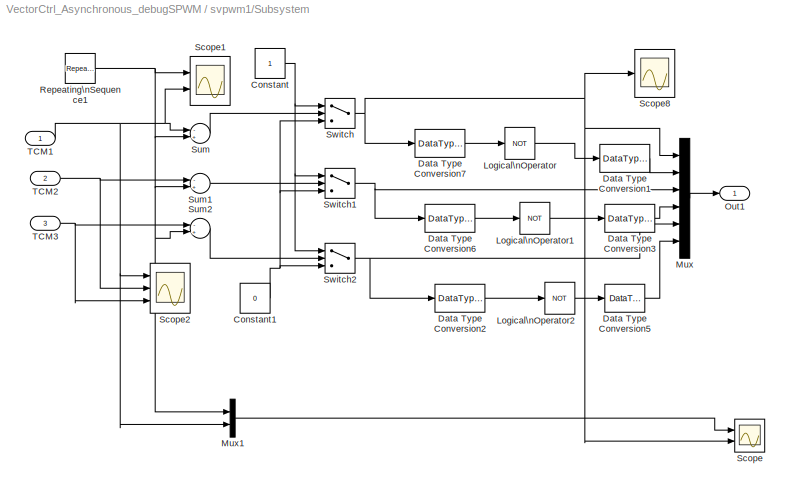
BLOCK [SubSystem] svpwm1/Subsystem
  FunctionWithSeparateData = off
  MaskHideContents = off
  MinAlgLoopOccurrences = off
  Opaque = off
  Ports = [3, 1]
  PropExecContextOutsideSubsystem = off
  RTWSystemCode = Auto
  RequestExecContextInheritance = off
  SID = 64
BLOCK [Constant] svpwm1/Subsystem/Constant
  SID = 68
BLOCK [Constant] svpwm1/Subsystem/Constant1
  SID = 69
  Value = 0
BLOCK [DataTypeConversion] svpwm1/Subsystem/Data Type Conversion1
  OutDataTypeStr = double
  SID = 70
BLOCK [DataTypeConversion] svpwm1/Subsystem/Data Type Conversion2
  OutDataTypeStr = boolean
  SID = 71
BLOCK [DataTypeConversion] svpwm1/Subsystem/Data Type Conversion3
  OutDataTypeStr = double
  SID = 72
BLOCK [DataTypeConversion] svpwm1/Subsystem/Data Type Conversion5
  OutDataTypeStr = double
  SID = 73
BLOCK [DataTypeConversion] svpwm1/Subsystem/Data Type Conversion6
  OutDataTypeStr = boolean
  SID = 74
BLOCK [DataTypeConversion] svpwm1/Subsystem/Data Type Conversion7
  OutDataTypeStr = boolean
  SID = 75
BLOCK [Logic] svpwm1/Subsystem/Logical\nOperator
  AllPortsSameDT = off
  Operator = NOT
  Ports = [1, 1]
  SID = 76
BLOCK [Logic] svpwm1/Subsystem/Logical\nOperator1
  AllPortsSameDT = off
  Operator = NOT
  Ports = [1, 1]
  SID = 77
BLOCK [Logic] svpwm1/Subsystem/Logical\nOperator2
  AllPortsSameDT = off
  Operator = NOT
  Ports = [1, 1]
  SID = 78
BLOCK [Mux] svpwm1/Subsystem/Mux
  DisplayOption = bar
  Inputs = 6
  Ports = [6, 1]
  SID = 79
BLOCK [Mux] svpwm1/Subsystem/Mux1
  DisplayOption = bar
  Inputs = 2
  Ports = [2, 1]
  SID = 549
BLOCK [Outport] svpwm1/Subsystem/Out1
  IconDisplay = Port number
  SID = 90
BLOCK [Reference] svpwm1/Subsystem/Repeating\nSequence1  REF=simulink/Sources/Repeating\nSequence
  Ports = [0, 1]
  SID = 80
  SourceBlock = simulink/Sources/Repeating\nSequence
  SourceType = Repeating table
  rep_seq_t = [0 1/10000 1/5000]
  rep_seq_y = [0 1/10000 0]
BLOCK [Scope] svpwm1/Subsystem/Scope
  DataFormat = StructureWithTime
  Floating = off
  LimitDataPoints = off
  NumInputPorts = 2
  Ports = [2]
  SID = 548
  SampleTime = 0
  SaveName = ScopeData20
  ShowLegends = off
  YMax = 5~5
  YMin = -5~-5
BLOCK [Scope] svpwm1/Subsystem/Scope1
  DataFormat = StructureWithTime
  Floating = off
  LimitDataPoints = off
  NumInputPorts = 2
  Ports = [2]
  SID = 81
  SaveName = ScopeData15
  ShowLegends = off
  TimeRange = 0.028
  YMax = 8.5e-005~2.64e-005
  YMin = 0~2.45e-005
  ZoomMode = xonly
BLOCK [Scope] svpwm1/Subsystem/Scope2
  DataFormat = StructureWithTime
  Floating = off
  LimitDataPoints = off
  NumInputPorts = 3
  Ports = [3]
  SID = 82
  SaveName = ScopeData19
  ShowLegends = off
  TimeRange = 1
  YMax = 6e-005~6e-005~6e-05
  YMin = 2.25e-005~2.25e-005~2.25e-05
  ZoomMode = xonly
BLOCK [Scope] svpwm1/Subsystem/Scope8
  DataFormat = StructureWithTime
  Floating = off
  LimitDataPoints = off
  NumInputPorts = 1
  Ports = [1]
  SID = 83
  SaveName = ScopeData13
  ShowLegends = off
  TimeRange = 0.07000000000000001
  YMax = 2
  YMin = 0
  ZoomMode = xonly
BLOCK [Sum] svpwm1/Subsystem/Sum
  InputSameDT = off
  Inputs = -+
  OutDataTypeStr = Inherit: Inherit via internal rule
  Ports = [2, 1]
  SID = 84
BLOCK [Sum] svpwm1/Subsystem/Sum1
  InputSameDT = off
  Inputs = -+
  OutDataTypeStr = Inherit: Inherit via internal rule
  Ports = [2, 1]
  SID = 85
BLOCK [Sum] svpwm1/Subsystem/Sum2
  InputSameDT = off
  Inputs = -+
  OutDataTypeStr = Inherit: Inherit via internal rule
  Ports = [2, 1]
  SID = 86
BLOCK [Switch] svpwm1/Subsystem/Switch
  InputSameDT = off
  SID = 87
BLOCK [Switch] svpwm1/Subsystem/Switch1
  InputSameDT = off
  SID = 88
BLOCK [Switch] svpwm1/Subsystem/Switch2
  InputSameDT = off
  SID = 89
BLOCK [Inport] svpwm1/Subsystem/TCM1
  IconDisplay = Port number
  SID = 65
BLOCK [Inport] svpwm1/Subsystem/TCM2
  IconDisplay = Port number
  Port = 2
  SID = 66
BLOCK [Inport] svpwm1/Subsystem/TCM3
  IconDisplay = Port number
  Port = 3
  SID = 67
BLOCK [Constant] svpwm1/T
  SID = 91
  Value = 1/5000
BLOCK [SubSystem] svpwm1/T1,T2 Calculate
  FunctionWithSeparateData = off
  MaskHideContents = off
  MinAlgLoopOccurrences = off
  Opaque = off
  Ports = [5, 2]
  PropExecContextOutsideSubsystem = off
  RTWSystemCode = Auto
  RequestExecContextInheritance = off
  SID = 92
BLOCK [Gain] svpwm1/T1,T2 Calculate/Gain
  Gain = -1
  SID = 98
BLOCK [Gain] svpwm1/T1,T2 Calculate/Gain1
  Gain = -1
  SID = 99
BLOCK [Gain] svpwm1/T1,T2 Calculate/Gain2
  Gain = -1
  SID = 100
BLOCK [MultiPortSwitch] svpwm1/T1,T2 Calculate/Multiport\nSwitch
  InputSameDT = off
  Inputs = 6
  Ports = [7, 1]
  SID = 101
  zeroidx = off
BLOCK [MultiPortSwitch] svpwm1/T1,T2 Calculate/Multiport\nSwitch1
  InputSameDT = off
  Inputs = 6
  Ports = [7, 1]
  SID = 102
  zeroidx = off
BLOCK [Inport] svpwm1/T1,T2 Calculate/N
  IconDisplay = Port number
  SID = 93
BLOCK [Product] svpwm1/T1,T2 Calculate/Product
  InputSameDT = off
  Inputs = **/
  Ports = [3, 1]
  RndMeth = Floor
  SID = 103
BLOCK [Product] svpwm1/T1,T2 Calculate/Product1
  InputSameDT = off
  Inputs = **/
  Ports = [3, 1]
  RndMeth = Floor
  SID = 104
BLOCK [Scope] svpwm1/T1,T2 Calculate/Scope
  DataFormat = StructureWithTime
  Floating = off
  NumInputPorts = 1
  Ports = [1]
  SID = 105
  SaveName = ScopeData16
  ShowLegends = off
  YMax = 6.25e-005
  YMin = 3.5e-005
BLOCK [Scope] svpwm1/T1,T2 Calculate/Scope1
  DataFormat = StructureWithTime
  Floating = off
  NumInputPorts = 1
  Ports = [1]
  SID = 106
  SaveName = ScopeData17
  ShowLegends = off
  YMax = 2e-007
  YMin = 1.3e-007
BLOCK [Sum] svpwm1/T1,T2 Calculate/Sum
  InputSameDT = off
  OutDataTypeStr = Inherit: Inherit via internal rule
  Ports = [2, 1]
  SID = 107
BLOCK [Sum] svpwm1/T1,T2 Calculate/Sum1
  InputSameDT = off
  Inputs = +-
  OutDataTypeStr = Inherit: Inherit via internal rule
  Ports = [2, 1]
  SID = 108
BLOCK [Switch] svpwm1/T1,T2 Calculate/Switch
  InputSameDT = off
  SID = 109
BLOCK [Switch] svpwm1/T1,T2 Calculate/Switch1
  InputSameDT = off
  SID = 110
BLOCK [Inport] svpwm1/T1,T2 Calculate/T
  IconDisplay = Port number
  Port = 5
  SID = 97
BLOCK [Outport] svpwm1/T1,T2 Calculate/T1
  IconDisplay = Port number
  SID = 111
BLOCK [Outport] svpwm1/T1,T2 Calculate/T2
  IconDisplay = Port number
  Port = 2
  SID = 112
BLOCK [Inport] svpwm1/T1,T2 Calculate/x
  IconDisplay = Port number
  Port = 2
  SID = 94
BLOCK [Inport] svpwm1/T1,T2 Calculate/y
  IconDisplay = Port number
  Port = 3
  SID = 95
BLOCK [Inport] svpwm1/T1,T2 Calculate/z
  IconDisplay = Port number
  Port = 4
  SID = 96
BLOCK [Inport] svpwm1/VDC
  IconDisplay = Port number
  Port = 3
  SID = 24
BLOCK [Inport] svpwm1/usaref
  IconDisplay = Port number
  Port = 2
  SID = 23
BLOCK [Inport] svpwm1/usbref
  IconDisplay = Port number
  SID = 22
BLOCK [SubSystem] svpwm1/x,y,z Calculate
  FunctionWithSeparateData = off
  MaskHideContents = off
  MinAlgLoopOccurrences = off
  Opaque = off
  Ports = [4, 3]
  PropExecContextOutsideSubsystem = off
  RTWSystemCode = Auto
  RequestExecContextInheritance = off
  SID = 113
BLOCK [Gain] svpwm1/x,y,z Calculate/Gain
  Gain = 1/2
  SID = 118
BLOCK [Gain] svpwm1/x,y,z Calculate/Gain1
  Gain = sqrt(3)
  SID = 119
BLOCK [Gain] svpwm1/x,y,z Calculate/Gain2
  Gain = 3/2
  SID = 120
BLOCK [Gain] svpwm1/x,y,z Calculate/Gain3
  Gain = sqrt(3)/2
  SID = 121
BLOCK [Product] svpwm1/x,y,z Calculate/Product
  InputSameDT = off
  Ports = [2, 1]
  RndMeth = Floor
  SID = 122
BLOCK [Product] svpwm1/x,y,z Calculate/Product1
  InputSameDT = off
  Ports = [2, 1]
  RndMeth = Floor
  SID = 123
BLOCK [Product] svpwm1/x,y,z Calculate/Product2
  InputSameDT = off
  Ports = [2, 1]
  RndMeth = Floor
  SID = 124
BLOCK [Product] svpwm1/x,y,z Calculate/Product3
  InputSameDT = off
  Inputs = */
  Ports = [2, 1]
  RndMeth = Floor
  SID = 125
BLOCK [Scope] svpwm1/x,y,z Calculate/Scope
  DataFormat = StructureWithTime
  Floating = off
  LimitDataPoints = off
  NumInputPorts = 3
  Ports = [3]
  SID = 126
  SaveName = ScopeData18
  ShowLegends = off
  YMax = 8e-005~8e-005~8e-005
  YMin = -8e-005~-8e-005~-8e-005
BLOCK [Sum] svpwm1/x,y,z Calculate/Sum
  InputSameDT = off
  OutDataTypeStr = Inherit: Inherit via internal rule
  Ports = [2, 1]
  SID = 127
BLOCK [Sum] svpwm1/x,y,z Calculate/Sum1
  InputSameDT = off
  Inputs = +-
  OutDataTypeStr = Inherit: Inherit via internal rule
  Ports = [2, 1]
  SID = 128
BLOCK [Inport] svpwm1/x,y,z Calculate/T
  IconDisplay = Port number
  Port = 3
  SID = 116
BLOCK [Inport] svpwm1/x,y,z Calculate/VDC
  IconDisplay = Port number
  Port = 4
  SID = 117
BLOCK [Inport] svpwm1/x,y,z Calculate/usaref
  IconDisplay = Port number
  Port = 2
  SID = 115
BLOCK [Inport] svpwm1/x,y,z Calculate/usbref
  IconDisplay = Port number
  SID = 114
BLOCK [Outport] svpwm1/x,y,z Calculate/x
  IconDisplay = Port number
  SID = 129
BLOCK [Outport] svpwm1/x,y,z Calculate/y
  IconDisplay = Port number
  Port = 2
  SID = 130
BLOCK [Outport] svpwm1/x,y,z Calculate/z
  IconDisplay = Port number
  Port = 3
  SID = 131
ANNOTATION svpwm1/Sector Calculate: -sqrt(3)311cos(314t)-311sin(314t)
ANNOTATION svpwm1/Sector Calculate: 311cos(314t)
ANNOTATION svpwm1/Sector Calculate: 311sin(314t)
ANNOTATION svpwm1/Sector Calculate: sqrt(3)311cos(314t)-311sin(314t)
ANNOTATION svpwm1/x,y,z Calculate: 1/6000
ANNOTATION svpwm1/x,y,z Calculate: 3/2311cos314t
ANNOTATION svpwm1/x,y,z Calculate: 311cos314t
ANNOTATION svpwm1/x,y,z Calculate: 311sin314t
ANNOTATION svpwm1/x,y,z Calculate: 620
ANNOTATION svpwm1/x,y,z Calculate: sqrt(3)/2311sin314t
ANNOTATION svpwm1/x,y,z Calculate: sqrt(3)311sin314t
LINE 1:1 -> Mux:3
NET 2r//2s1/Demux:1 -> 2r//2s1/Product1:2, 2r//2s1/Product2:2
NET 2r//2s1/Demux:2 -> 2r//2s1/Product3:2, 2r//2s1/Product:2
LINE 2r//2s1/Product1:1 -> 2r//2s1/Sum:2
LINE 2r//2s1/Product2:1 -> 2r//2s1/Sum1:1
LINE 2r//2s1/Product3:1 -> 2r//2s1/Sum1:2
LINE 2r//2s1/Product:1 -> 2r//2s1/Sum:1
LINE 2r//2s1/Sum1:1 -> 2r//2s1/beta:1
LINE 2r//2s1/Sum:1 -> 2r//2s1/alpha:1
NET 2r//2s1/d:1 -> 2r//2s1/Product2:1, 2r//2s1/Product:1
NET 2r//2s1/q:1 -> 2r//2s1/Product1:1, 2r//2s1/Product3:1
LINE 2r//2s1/sin_cos:1 -> 2r//2s1/Demux:1
LINE 2r//2s1:1 -> svpwm1:1
LINE 2r//2s1:2 -> svpwm1:2
LINE CBSVM/2r//2s/Demux1:1 -> CBSVM/2r//2s/MATLAB Function:1
LINE CBSVM/2r//2s/Demux1:2 -> CBSVM/2r//2s/MATLAB Function:2
LINE CBSVM/2r//2s/Demux:1 -> CBSVM/2r//2s/MATLAB Function:3
LINE CBSVM/2r//2s/Demux:2 -> CBSVM/2r//2s/MATLAB Function:4
LINE CBSVM/2r//2s/MATLAB Function/ Demux :1 -> CBSVM/2r//2s/MATLAB Function/ Terminator :1
LINE CBSVM/2r//2s/MATLAB Function/ SFunction :1 -> CBSVM/2r//2s/MATLAB Function/ Demux :1
LINE CBSVM/2r//2s/MATLAB Function/ SFunction :2 -> CBSVM/2r//2s/MATLAB Function/Valpha:1
LINE CBSVM/2r//2s/MATLAB Function/ SFunction :3 -> CBSVM/2r//2s/MATLAB Function/Vbeta:1
LINE CBSVM/2r//2s/MATLAB Function/Vd:1 -> CBSVM/2r//2s/MATLAB Function/ SFunction :1
LINE CBSVM/2r//2s/MATLAB Function/Vq:1 -> CBSVM/2r//2s/MATLAB Function/ SFunction :2
LINE CBSVM/2r//2s/MATLAB Function/coswt:1 -> CBSVM/2r//2s/MATLAB Function/ SFunction :4
LINE CBSVM/2r//2s/MATLAB Function/sinwt:1 -> CBSVM/2r//2s/MATLAB Function/ SFunction :3
LINE CBSVM/2r//2s/MATLAB Function:1 -> CBSVM/2r//2s/Mux:1
LINE CBSVM/2r//2s/MATLAB Function:2 -> CBSVM/2r//2s/Mux:2
LINE CBSVM/2r//2s/Mux:1 -> CBSVM/2r//2s/αβ:1
LINE CBSVM/2r//2s/dq:1 -> CBSVM/2r//2s/Demux1:1
LINE CBSVM/2r//2s/sin_cos:1 -> CBSVM/2r//2s/Demux:1
LINE CBSVM/2r//2s:1 -> CBSVM/2s//3s:1
LINE CBSVM/2s//3s/Demux:1 -> CBSVM/2s//3s/MATLAB Function:1
LINE CBSVM/2s//3s/Demux:2 -> CBSVM/2s//3s/MATLAB Function:2
LINE CBSVM/2s//3s/MATLAB Function/ Demux :1 -> CBSVM/2s//3s/MATLAB Function/ Terminator :1
LINE CBSVM/2s//3s/MATLAB Function/ SFunction :1 -> CBSVM/2s//3s/MATLAB Function/ Demux :1
LINE CBSVM/2s//3s/MATLAB Function/ SFunction :2 -> CBSVM/2s//3s/MATLAB Function/Va:1
LINE CBSVM/2s//3s/MATLAB Function/ SFunction :3 -> CBSVM/2s//3s/MATLAB Function/Vb:1
LINE CBSVM/2s//3s/MATLAB Function/ SFunction :4 -> CBSVM/2s//3s/MATLAB Function/Vc:1
LINE CBSVM/2s//3s/MATLAB Function/Valpha:1 -> CBSVM/2s//3s/MATLAB Function/ SFunction :1
LINE CBSVM/2s//3s/MATLAB Function/Vbeta:1 -> CBSVM/2s//3s/MATLAB Function/ SFunction :2
LINE CBSVM/2s//3s/MATLAB Function:1 -> CBSVM/2s//3s/Mux:1
LINE CBSVM/2s//3s/MATLAB Function:2 -> CBSVM/2s//3s/Mux:2
LINE CBSVM/2s//3s/MATLAB Function:3 -> CBSVM/2s//3s/Mux:3
LINE CBSVM/2s//3s/Mux:1 -> CBSVM/2s//3s/abc:1
LINE CBSVM/2s//3s/αβ:1 -> CBSVM/2s//3s/Demux:1
NET CBSVM/2s//3s:1 -> CBSVM/Demux1:1, CBSVM/MinMax1:1, CBSVM/MinMax:1, CBSVM/Scope:1
NET CBSVM/Constant:1 -> CBSVM/Sum4:2, CBSVM/Sum5:2, CBSVM/Sum6:2
LINE CBSVM/Demux1:1 -> CBSVM/Sum1:1
LINE CBSVM/Demux1:2 -> CBSVM/Sum2:1
LINE CBSVM/Demux1:3 -> CBSVM/Sum3:1
LINE CBSVM/Demux:1 -> CBSVM/2r//2s:2
LINE CBSVM/Demux:2 -> CBSVM/Mux:1
LINE CBSVM/Demux:3 -> CBSVM/Mux:2
LINE CBSVM/Gain1:1 -> CBSVM/Sum4:1
LINE CBSVM/Gain2:1 -> CBSVM/Sum5:1
LINE CBSVM/Gain3:1 -> CBSVM/Sum6:1
NET CBSVM/Gain:1 -> CBSVM/Sum1:2, CBSVM/Sum2:2, CBSVM/Sum3:2
LINE CBSVM/In1:1 -> CBSVM/Demux:1
LINE CBSVM/MinMax1:1 -> CBSVM/Sum:2
LINE CBSVM/MinMax:1 -> CBSVM/Sum:1
LINE CBSVM/Mux:1 -> CBSVM/2r//2s:1
NET CBSVM/Subsystem/Constant1:1 -> CBSVM/Subsystem/Switch1:3, CBSVM/Subsystem/Switch2:3, CBSVM/Subsystem/Switch:3
NET CBSVM/Subsystem/Constant:1 -> CBSVM/Subsystem/Switch1:1, CBSVM/Subsystem/Switch2:1, CBSVM/Subsystem/Switch:1
LINE CBSVM/Subsystem/Data Type Conversion1:1 -> CBSVM/Subsystem/Mux:2
LINE CBSVM/Subsystem/Data Type Conversion2:1 -> CBSVM/Subsystem/Logical\nOperator2:1
LINE CBSVM/Subsystem/Data Type Conversion3:1 -> CBSVM/Subsystem/Mux:4
LINE CBSVM/Subsystem/Data Type Conversion5:1 -> CBSVM/Subsystem/Mux:6
LINE CBSVM/Subsystem/Data Type Conversion6:1 -> CBSVM/Subsystem/Logical\nOperator1:1
LINE CBSVM/Subsystem/Data Type Conversion7:1 -> CBSVM/Subsystem/Logical\nOperator:1
LINE CBSVM/Subsystem/Logical\nOperator1:1 -> CBSVM/Subsystem/Data Type Conversion3:1
LINE CBSVM/Subsystem/Logical\nOperator2:1 -> CBSVM/Subsystem/Data Type Conversion5:1
LINE CBSVM/Subsystem/Logical\nOperator:1 -> CBSVM/Subsystem/Data Type Conversion1:1
LINE CBSVM/Subsystem/Mux1:1 -> CBSVM/Subsystem/Scope:1
LINE CBSVM/Subsystem/Mux:1 -> CBSVM/Subsystem/Out1:1
NET CBSVM/Subsystem/Repeating\nSequence1:1 -> CBSVM/Subsystem/Mux1:1, CBSVM/Subsystem/Scope1:1, CBSVM/Subsystem/Sum1:2, CBSVM/Subsystem/Sum2:2, CBSVM/Subsystem/Sum:2
LINE CBSVM/Subsystem/Sum1:1 -> CBSVM/Subsystem/Switch1:2
LINE CBSVM/Subsystem/Sum2:1 -> CBSVM/Subsystem/Switch2:2
LINE CBSVM/Subsystem/Sum:1 -> CBSVM/Subsystem/Switch:2
NET CBSVM/Subsystem/Switch1:1 -> CBSVM/Subsystem/Data Type Conversion6:1, CBSVM/Subsystem/Mux:3
NET CBSVM/Subsystem/Switch2:1 -> CBSVM/Subsystem/Data Type Conversion2:1, CBSVM/Subsystem/Mux:5
NET CBSVM/Subsystem/Switch:1 -> CBSVM/Subsystem/Data Type Conversion7:1, CBSVM/Subsystem/Mux:1, CBSVM/Subsystem/Scope8:1, CBSVM/Subsystem/Scope:2
NET CBSVM/Subsystem/TCM1:1 -> CBSVM/Subsystem/Mux1:2, CBSVM/Subsystem/Scope1:2, CBSVM/Subsystem/Scope2:1, CBSVM/Subsystem/Sum:1
NET CBSVM/Subsystem/TCM2:1 -> CBSVM/Subsystem/Scope2:2, CBSVM/Subsystem/Sum1:1
NET CBSVM/Subsystem/TCM3:1 -> CBSVM/Subsystem/Scope2:3, CBSVM/Subsystem/Sum2:1
LINE CBSVM/Subsystem:1 -> CBSVM/Zero-Order\nHold:1
LINE CBSVM/Sum1:1 -> CBSVM/Gain1:1
LINE CBSVM/Sum2:1 -> CBSVM/Gain2:1
LINE CBSVM/Sum3:1 -> CBSVM/Gain3:1
NET CBSVM/Sum4:1 -> CBSVM/Scope1:1, CBSVM/Scope:2, CBSVM/Subsystem:1
LINE CBSVM/Sum5:1 -> CBSVM/Subsystem:2
LINE CBSVM/Sum6:1 -> CBSVM/Subsystem:3
LINE CBSVM/Sum:1 -> CBSVM/Gain:1
LINE CBSVM/Zero-Order\nHold:1 -> CBSVM/Out1:1
NET CBSVM:1 -> Demux:1, Goto8:1
NET Constant1:1 -> 2r//2s1:3, Mux2:3
NET Constant:1 -> 2r//2s1:2, Mux2:2
LINE Demux:1 -> Scope:2
LINE Demux:3 -> Scope:3
LINE Demux:5 -> Scope:4
LINE From2:1 -> svpwm1:3
LINE From6:1 -> Universal Bridge1:1
LINE Mux2:1 -> CBSVM:1
LINE Mux:1 -> Universal Bridge:1
LINE Ramp:1 -> Saturation:1
LINE Repeating\nSequence\nStair1:1 -> Mux:2
LINE Repeating\nSequence\nStair2:1 -> Mux:6
LINE Repeating\nSequence\nStair3:1 -> Mux:4
LINE Repeating\nSequence\nStair4:1 -> Mux:5
NET Repeating\nSequence\nStair:1 -> Mux:1, Scope3:1
LINE Va:1 -> Scope:1
NET Vbus:1 -> Goto3:1, Scope1:1
LINE Volt_calc/Constant:1 -> Volt_calc/Switch:3
NET Volt_calc/Gain1:1 -> Volt_calc/Out1:1, Volt_calc/Scope:1
LINE Volt_calc/Gain:1 -> Volt_calc/Gain1:1
LINE Volt_calc/Ramp:1 -> Volt_calc/Switch:2
LINE Volt_calc/Switch:1 -> Volt_calc/Gain:1
LINE Volt_calc/f_AfterRamp:1 -> Volt_calc/Switch:1
LINE Voltage Measurement:1 -> Scope3:2
LINE f_cal/Constant1:1 -> f_cal/Saturation:1
LINE f_cal/Constant4:1 -> f_cal/Math\nFunction1:2
NET f_cal/Constant:1 -> f_cal/Gain1:1, f_cal/Mux1:1
LINE f_cal/Gain1:1 -> f_cal/nset:1
NET f_cal/Gain:1 -> f_cal/Integrator2:1, f_cal/Scope:2, f_cal/w:1
LINE f_cal/Integrator2:1 -> f_cal/Math\nFunction1:1
NET f_cal/Math\nFunction1:1 -> f_cal/Scope:3, f_cal/cosine:1, f_cal/sin:1, f_cal/wt:1
LINE f_cal/Mux1:1 -> f_cal/Scope:1
NET f_cal/Mux:1 -> f_cal/Scope:4, f_cal/sin_coswt:1
LINE f_cal/Ramp Function/ Demux :1 -> f_cal/Ramp Function/ Terminator :1
LINE f_cal/Ramp Function/ SFunction :1 -> f_cal/Ramp Function/ Demux :1
LINE f_cal/Ramp Function/ SFunction :2 -> f_cal/Ramp Function/ValueAfterRamp:1
LINE f_cal/Ramp Function/AccTime:1 -> f_cal/Ramp Function/ SFunction :2
LINE f_cal/Ramp Function/DecTime:1 -> f_cal/Ramp Function/ SFunction :3
LINE f_cal/Ramp Function/Tsample:1 -> f_cal/Ramp Function/ SFunction :5
LINE f_cal/Ramp Function/ValueBase:1 -> f_cal/Ramp Function/ SFunction :4
LINE f_cal/Ramp Function/ValueCurrent:1 -> f_cal/Ramp Function/ SFunction :6
LINE f_cal/Ramp Function/ValueInput:1 -> f_cal/Ramp Function/ SFunction :1
NET f_cal/Saturation:1 -> f_cal/Gain:1, f_cal/Mux1:2, f_cal/f_AfterRamp:1
LINE f_cal/cosine:1 -> f_cal/Mux:2
LINE f_cal/ramp/Constant1:1 -> f_cal/ramp/MATLAB Function:5
LINE f_cal/ramp/Constant2:1 -> f_cal/ramp/MATLAB Function:3
LINE f_cal/ramp/Constant3:1 -> f_cal/ramp/MATLAB Function:2
LINE f_cal/ramp/Constant4:1 -> f_cal/ramp/MATLAB Function:1
LINE f_cal/ramp/Constant:1 -> f_cal/ramp/MATLAB Function:4
LINE f_cal/ramp/MATLAB Function/ Demux :1 -> f_cal/ramp/MATLAB Function/ Terminator :1
LINE f_cal/ramp/MATLAB Function/ SFunction :1 -> f_cal/ramp/MATLAB Function/ Demux :1
LINE f_cal/ramp/MATLAB Function/ SFunction :2 -> f_cal/ramp/MATLAB Function/ValueAfterRamp:1
LINE f_cal/ramp/MATLAB Function/AccTime:1 -> f_cal/ramp/MATLAB Function/ SFunction :2
LINE f_cal/ramp/MATLAB Function/DecTime:1 -> f_cal/ramp/MATLAB Function/ SFunction :3
LINE f_cal/ramp/MATLAB Function/Tsample:1 -> f_cal/ramp/MATLAB Function/ SFunction :5
LINE f_cal/ramp/MATLAB Function/ValueBase:1 -> f_cal/ramp/MATLAB Function/ SFunction :4
LINE f_cal/ramp/MATLAB Function/ValueCurrent:1 -> f_cal/ramp/MATLAB Function/ SFunction :6
LINE f_cal/ramp/MATLAB Function/ValueInput:1 -> f_cal/ramp/MATLAB Function/ SFunction :1
NET f_cal/ramp/MATLAB Function:1 -> f_cal/ramp/Scope:1, f_cal/ramp/Unit Delay:1
LINE f_cal/ramp/Unit Delay:1 -> f_cal/ramp/MATLAB Function:6
LINE f_cal/sin:1 -> f_cal/Mux:1
NET f_cal:1 -> 2r//2s1:1, Goto:1, Mux2:1
NET f_cal:5 -> Goto2:1, Volt_calc:1
LINE svpwm1/Campare Time Calculate/Gain1:1 -> svpwm1/Campare Time Calculate/Sum1:2
LINE svpwm1/Campare Time Calculate/Gain2:1 -> svpwm1/Campare Time Calculate/Sum2:2
NET svpwm1/Campare Time Calculate/Gain:1 -> svpwm1/Campare Time Calculate/Multiport\nSwitch1:2, svpwm1/Campare Time Calculate/Multiport\nSwitch1:6, svpwm1/Campare Time Calculate/Multiport\nSwitch2:5, svpwm1/Campare Time Calculate/Multiport\nSwitch2:7, svpwm1/Campare Time Calculate/Multiport\nSwitch:3, svpwm1/Campare Time Calculate/Multiport\nSwitch:4, svpwm1/Campare Time Calculate/Sum1:1
LINE svpwm1/Campare Time Calculate/Multiport\nSwitch1:1 -> svpwm1/Campare Time Calculate/TCM2:1
LINE svpwm1/Campare Time Calculate/Multiport\nSwitch2:1 -> svpwm1/Campare Time Calculate/TCM3:1
LINE svpwm1/Campare Time Calculate/Multiport\nSwitch:1 -> svpwm1/Campare Time Calculate/TCM1:1
NET svpwm1/Campare Time Calculate/N:1 -> svpwm1/Campare Time Calculate/Multiport\nSwitch1:1, svpwm1/Campare Time Calculate/Multiport\nSwitch2:1, svpwm1/Campare Time Calculate/Multiport\nSwitch:1
NET svpwm1/Campare Time Calculate/Sum1:1 -> svpwm1/Campare Time Calculate/Multiport\nSwitch1:4, svpwm1/Campare Time Calculate/Multiport\nSwitch1:5, svpwm1/Campare Time Calculate/Multiport\nSwitch2:3, svpwm1/Campare Time Calculate/Multiport\nSwitch2:6, svpwm1/Campare Time Calculate/Multiport\nSwitch:2, svpwm1/Campare Time Calculate/Multiport\nSwitch:7, svpwm1/Campare Time Calculate/Sum2:1
NET svpwm1/Campare Time Calculate/Sum2:1 -> svpwm1/Campare Time Calculate/Multiport\nSwitch1:3, svpwm1/Campare Time Calculate/Multiport\nSwitch1:7, svpwm1/Campare Time Calculate/Multiport\nSwitch2:2, svpwm1/Campare Time Calculate/Multiport\nSwitch2:4, svpwm1/Campare Time Calculate/Multiport\nSwitch:5, svpwm1/Campare Time Calculate/Multiport\nSwitch:6
LINE svpwm1/Campare Time Calculate/Sum:1 -> svpwm1/Campare Time Calculate/Gain:1
NET svpwm1/Campare Time Calculate/T1:1 -> svpwm1/Campare Time Calculate/Gain1:1, svpwm1/Campare Time Calculate/Sum:2
NET svpwm1/Campare Time Calculate/T2:1 -> svpwm1/Campare Time Calculate/Gain2:1, svpwm1/Campare Time Calculate/Sum:3
LINE svpwm1/Campare Time Calculate/T:1 -> svpwm1/Campare Time Calculate/Sum:1
LINE svpwm1/Campare Time Calculate:1 -> svpwm1/Subsystem:1
LINE svpwm1/Campare Time Calculate:2 -> svpwm1/Subsystem:2
LINE svpwm1/Campare Time Calculate:3 -> svpwm1/Subsystem:3
LINE svpwm1/Memory:1 -> svpwm1/On//Off Delay:1
LINE svpwm1/On//Off Delay:1 -> svpwm1/6pulse:1
NET svpwm1/Sector Calculate/Constant1:1 -> svpwm1/Sector Calculate/Switch1:3, svpwm1/Sector Calculate/Switch2:3, svpwm1/Sector Calculate/Switch:3
NET svpwm1/Sector Calculate/Constant:1 -> svpwm1/Sector Calculate/Switch1:1, svpwm1/Sector Calculate/Switch2:1, svpwm1/Sector Calculate/Switch:1
LINE svpwm1/Sector Calculate/Gain1:1 -> svpwm1/Sector Calculate/Sum2:3
LINE svpwm1/Sector Calculate/Gain2:1 -> svpwm1/Sector Calculate/Sum:2
LINE svpwm1/Sector Calculate/Gain3:1 -> svpwm1/Sector Calculate/Sum1:2
LINE svpwm1/Sector Calculate/Gain:1 -> svpwm1/Sector Calculate/Sum2:2
LINE svpwm1/Sector Calculate/Saturation:1 -> svpwm1/Sector Calculate/N:1
LINE svpwm1/Sector Calculate/Sum1:1 -> svpwm1/Sector Calculate/Switch2:2
LINE svpwm1/Sector Calculate/Sum2:1 -> svpwm1/Sector Calculate/Saturation:1
LINE svpwm1/Sector Calculate/Sum:1 -> svpwm1/Sector Calculate/Switch1:2
LINE svpwm1/Sector Calculate/Switch1:1 -> svpwm1/Sector Calculate/Gain:1
LINE svpwm1/Sector Calculate/Switch2:1 -> svpwm1/Sector Calculate/Gain1:1
LINE svpwm1/Sector Calculate/Switch:1 -> svpwm1/Sector Calculate/Sum2:1
NET svpwm1/Sector Calculate/usaref:1 -> svpwm1/Sector Calculate/Gain2:1, svpwm1/Sector Calculate/Gain3:1
NET svpwm1/Sector Calculate/usbref:1 -> svpwm1/Sector Calculate/Sum1:1, svpwm1/Sector Calculate/Sum:1, svpwm1/Sector Calculate/Switch:2
NET svpwm1/Sector Calculate:1 -> svpwm1/Campare Time Calculate:1, svpwm1/T1,T2 Calculate:1
NET svpwm1/Subsystem/Constant1:1 -> svpwm1/Subsystem/Switch1:3, svpwm1/Subsystem/Switch2:3, svpwm1/Subsystem/Switch:3
NET svpwm1/Subsystem/Constant:1 -> svpwm1/Subsystem/Switch1:1, svpwm1/Subsystem/Switch2:1, svpwm1/Subsystem/Switch:1
LINE svpwm1/Subsystem/Data Type Conversion1:1 -> svpwm1/Subsystem/Mux:2
LINE svpwm1/Subsystem/Data Type Conversion2:1 -> svpwm1/Subsystem/Logical\nOperator2:1
LINE svpwm1/Subsystem/Data Type Conversion3:1 -> svpwm1/Subsystem/Mux:4
LINE svpwm1/Subsystem/Data Type Conversion5:1 -> svpwm1/Subsystem/Mux:6
LINE svpwm1/Subsystem/Data Type Conversion6:1 -> svpwm1/Subsystem/Logical\nOperator1:1
LINE svpwm1/Subsystem/Data Type Conversion7:1 -> svpwm1/Subsystem/Logical\nOperator:1
LINE svpwm1/Subsystem/Logical\nOperator1:1 -> svpwm1/Subsystem/Data Type Conversion3:1
LINE svpwm1/Subsystem/Logical\nOperator2:1 -> svpwm1/Subsystem/Data Type Conversion5:1
LINE svpwm1/Subsystem/Logical\nOperator:1 -> svpwm1/Subsystem/Data Type Conversion1:1
LINE svpwm1/Subsystem/Mux1:1 -> svpwm1/Subsystem/Scope:1
LINE svpwm1/Subsystem/Mux:1 -> svpwm1/Subsystem/Out1:1
NET svpwm1/Subsystem/Repeating\nSequence1:1 -> svpwm1/Subsystem/Mux1:1, svpwm1/Subsystem/Scope1:1, svpwm1/Subsystem/Sum1:2, svpwm1/Subsystem/Sum2:2, svpwm1/Subsystem/Sum:2
LINE svpwm1/Subsystem/Sum1:1 -> svpwm1/Subsystem/Switch1:2
LINE svpwm1/Subsystem/Sum2:1 -> svpwm1/Subsystem/Switch2:2
LINE svpwm1/Subsystem/Sum:1 -> svpwm1/Subsystem/Switch:2
NET svpwm1/Subsystem/Switch1:1 -> svpwm1/Subsystem/Data Type Conversion6:1, svpwm1/Subsystem/Mux:3
NET svpwm1/Subsystem/Switch2:1 -> svpwm1/Subsystem/Data Type Conversion2:1, svpwm1/Subsystem/Mux:5
NET svpwm1/Subsystem/Switch:1 -> svpwm1/Subsystem/Data Type Conversion7:1, svpwm1/Subsystem/Mux:1, svpwm1/Subsystem/Scope8:1, svpwm1/Subsystem/Scope:2
NET svpwm1/Subsystem/TCM1:1 -> svpwm1/Subsystem/Mux1:2, svpwm1/Subsystem/Scope1:2, svpwm1/Subsystem/Scope2:1, svpwm1/Subsystem/Sum:1
NET svpwm1/Subsystem/TCM2:1 -> svpwm1/Subsystem/Scope2:2, svpwm1/Subsystem/Sum1:1
NET svpwm1/Subsystem/TCM3:1 -> svpwm1/Subsystem/Scope2:3, svpwm1/Subsystem/Sum2:1
LINE svpwm1/Subsystem:1 -> svpwm1/Memory:1
NET svpwm1/T1,T2 Calculate/Gain1:1 -> svpwm1/T1,T2 Calculate/Multiport\nSwitch1:6, svpwm1/T1,T2 Calculate/Multiport\nSwitch:7
NET svpwm1/T1,T2 Calculate/Gain2:1 -> svpwm1/T1,T2 Calculate/Multiport\nSwitch1:7, svpwm1/T1,T2 Calculate/Multiport\nSwitch:4
NET svpwm1/T1,T2 Calculate/Gain:1 -> svpwm1/T1,T2 Calculate/Multiport\nSwitch1:3, svpwm1/T1,T2 Calculate/Multiport\nSwitch:5
NET svpwm1/T1,T2 Calculate/Multiport\nSwitch1:1 -> svpwm1/T1,T2 Calculate/Product1:1, svpwm1/T1,T2 Calculate/Sum:2, svpwm1/T1,T2 Calculate/Switch1:1
NET svpwm1/T1,T2 Calculate/Multiport\nSwitch:1 -> svpwm1/T1,T2 Calculate/Product:1, svpwm1/T1,T2 Calculate/Sum:1, svpwm1/T1,T2 Calculate/Switch:1
NET svpwm1/T1,T2 Calculate/N:1 -> svpwm1/T1,T2 Calculate/Multiport\nSwitch1:1, svpwm1/T1,T2 Calculate/Multiport\nSwitch:1
LINE svpwm1/T1,T2 Calculate/Product1:1 -> svpwm1/T1,T2 Calculate/Switch1:3
LINE svpwm1/T1,T2 Calculate/Product:1 -> svpwm1/T1,T2 Calculate/Switch:3
NET svpwm1/T1,T2 Calculate/Sum1:1 -> svpwm1/T1,T2 Calculate/Switch1:2, svpwm1/T1,T2 Calculate/Switch:2
NET svpwm1/T1,T2 Calculate/Sum:1 -> svpwm1/T1,T2 Calculate/Product1:3, svpwm1/T1,T2 Calculate/Product:3, svpwm1/T1,T2 Calculate/Sum1:2
NET svpwm1/T1,T2 Calculate/Switch1:1 -> svpwm1/T1,T2 Calculate/Scope1:1, svpwm1/T1,T2 Calculate/T2:1
NET svpwm1/T1,T2 Calculate/Switch:1 -> svpwm1/T1,T2 Calculate/Scope:1, svpwm1/T1,T2 Calculate/T1:1
NET svpwm1/T1,T2 Calculate/T:1 -> svpwm1/T1,T2 Calculate/Product1:2, svpwm1/T1,T2 Calculate/Product:2, svpwm1/T1,T2 Calculate/Sum1:1
NET svpwm1/T1,T2 Calculate/x:1 -> svpwm1/T1,T2 Calculate/Gain:1, svpwm1/T1,T2 Calculate/Multiport\nSwitch1:4, svpwm1/T1,T2 Calculate/Multiport\nSwitch:6
NET svpwm1/T1,T2 Calculate/y:1 -> svpwm1/T1,T2 Calculate/Gain1:1, svpwm1/T1,T2 Calculate/Multiport\nSwitch1:2, svpwm1/T1,T2 Calculate/Multiport\nSwitch:3
NET svpwm1/T1,T2 Calculate/z:1 -> svpwm1/T1,T2 Calculate/Gain2:1, svpwm1/T1,T2 Calculate/Multiport\nSwitch1:5, svpwm1/T1,T2 Calculate/Multiport\nSwitch:2
LINE svpwm1/T1,T2 Calculate:1 -> svpwm1/Campare Time Calculate:2
LINE svpwm1/T1,T2 Calculate:2 -> svpwm1/Campare Time Calculate:3
NET svpwm1/T:1 -> svpwm1/Campare Time Calculate:4, svpwm1/T1,T2 Calculate:5, svpwm1/x,y,z Calculate:3
LINE svpwm1/VDC:1 -> svpwm1/x,y,z Calculate:4
NET svpwm1/usaref:1 -> svpwm1/Sector Calculate:2, svpwm1/x,y,z Calculate:2
NET svpwm1/usbref:1 -> svpwm1/Sector Calculate:1, svpwm1/x,y,z Calculate:1
LINE svpwm1/x,y,z Calculate/Gain1:1 -> svpwm1/x,y,z Calculate/Product:1
NET svpwm1/x,y,z Calculate/Gain2:1 -> svpwm1/x,y,z Calculate/Sum1:2, svpwm1/x,y,z Calculate/Sum:2
NET svpwm1/x,y,z Calculate/Gain3:1 -> svpwm1/x,y,z Calculate/Sum1:1, svpwm1/x,y,z Calculate/Sum:1
NET svpwm1/x,y,z Calculate/Gain:1 -> svpwm1/x,y,z Calculate/Product1:2, svpwm1/x,y,z Calculate/Product2:2, svpwm1/x,y,z Calculate/Product:2
NET svpwm1/x,y,z Calculate/Product1:1 -> svpwm1/x,y,z Calculate/Scope:2, svpwm1/x,y,z Calculate/y:1
NET svpwm1/x,y,z Calculate/Product2:1 -> svpwm1/x,y,z Calculate/Scope:3, svpwm1/x,y,z Calculate/z:1
LINE svpwm1/x,y,z Calculate/Product3:1 -> svpwm1/x,y,z Calculate/Gain:1
NET svpwm1/x,y,z Calculate/Product:1 -> svpwm1/x,y,z Calculate/Scope:1, svpwm1/x,y,z Calculate/x:1
LINE svpwm1/x,y,z Calculate/Sum1:1 -> svpwm1/x,y,z Calculate/Product2:1
LINE svpwm1/x,y,z Calculate/Sum:1 -> svpwm1/x,y,z Calculate/Product1:1
LINE svpwm1/x,y,z Calculate/T:1 -> svpwm1/x,y,z Calculate/Product3:1
LINE svpwm1/x,y,z Calculate/VDC:1 -> svpwm1/x,y,z Calculate/Product3:2
LINE svpwm1/x,y,z Calculate/usaref:1 -> svpwm1/x,y,z Calculate/Gain2:1
NET svpwm1/x,y,z Calculate/usbref:1 -> svpwm1/x,y,z Calculate/Gain1:1, svpwm1/x,y,z Calculate/Gain3:1
LINE svpwm1/x,y,z Calculate:1 -> svpwm1/T1,T2 Calculate:2
LINE svpwm1/x,y,z Calculate:2 -> svpwm1/T1,T2 Calculate:3
LINE svpwm1/x,y,z Calculate:3 -> svpwm1/T1,T2 Calculate:4
LINE svpwm1:1 -> Goto1:1
PNET net1: DC Voltage Source1:LConn1 -- DC Voltage Source2:RConn1 -- Va:LConn2 -- Vb:LConn2 -- Vc:LConn2
PNET net2: DC Voltage Source1:RConn1 -- Universal Bridge1:RConn1 -- Vbus:LConn1
PNET net3: DC Voltage Source2:LConn1 -- Universal Bridge1:RConn2 -- Vbus:LConn2
PNET net4: DC Voltage Source3:LConn1 -- DC Voltage Source4:RConn1 -- Voltage Measurement:LConn2
PLINE DC Voltage Source3:RConn1 -- Universal Bridge:RConn1
PLINE DC Voltage Source4:LConn1 -- Universal Bridge:RConn2
PLINE Universal Bridge1:LConn1 -- Va:LConn1
PLINE Universal Bridge1:LConn2 -- Vb:LConn1
PLINE Universal Bridge1:LConn3 -- Vc:LConn1
PLINE Universal Bridge:LConn1 -- Voltage Measurement:LConn1
note: NET lines group one-source signal fan-out (src -> all destinations, sorted); 1:1 wires keep LINE; PNET lines group multi-terminal physical nets as a canonical sorted terminal list (undirected conserving connections); 2-terminal nets keep the pairwise PLINE form
CHART f_cal/Ramp Function states=1 transitions=1
  STATE_LABEL 'eML_blk_kernel()'
CHART f_cal/ramp/MATLAB Function states=1 transitions=1
  STATE_LABEL 'eML_blk_kernel()'
CHART CBSVM/2r//2s/MATLAB Function states=1 transitions=1
  STATE_LABEL 'eML_blk_kernel()'
CHART CBSVM/2s//3s/MATLAB Function states=1 transitions=1
  STATE_LABEL 'eML_blk_kernel()'
